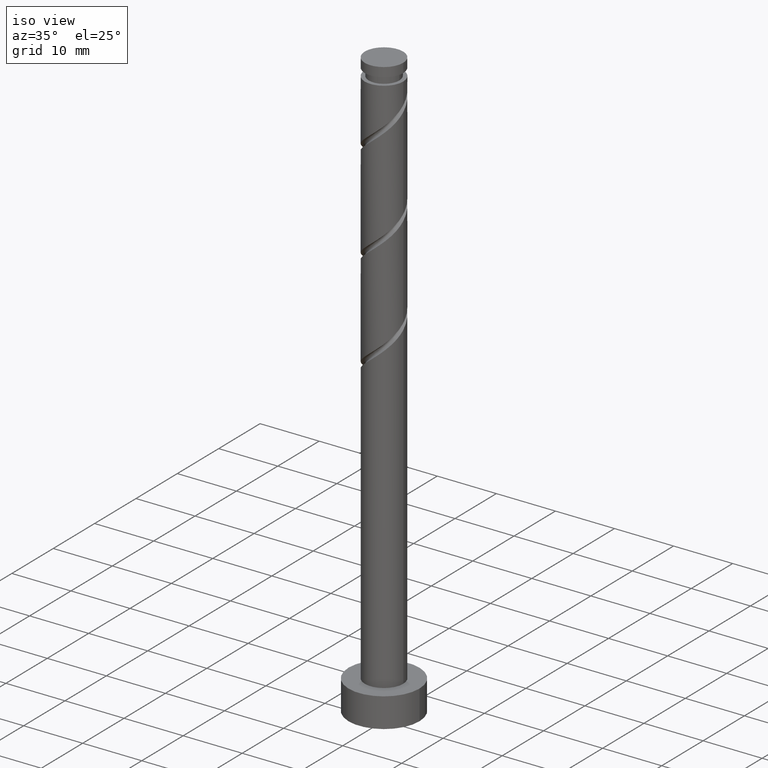
[diagram: clean part render]
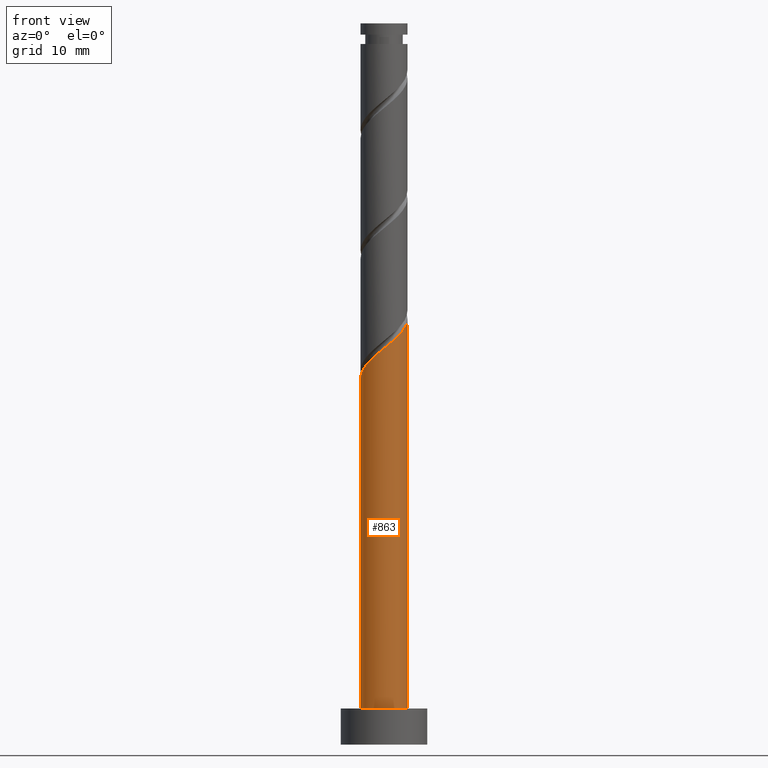
[diagram: tour spotlight — one face highlighted and labeled with its STEP entity id]
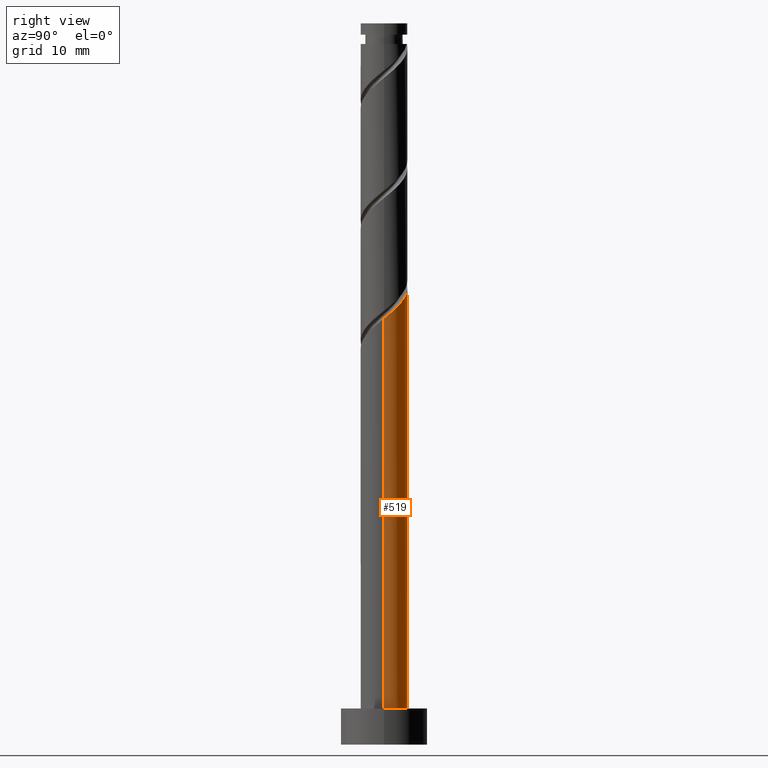
[diagram: tour spotlight — one face highlighted and labeled with its STEP entity id]
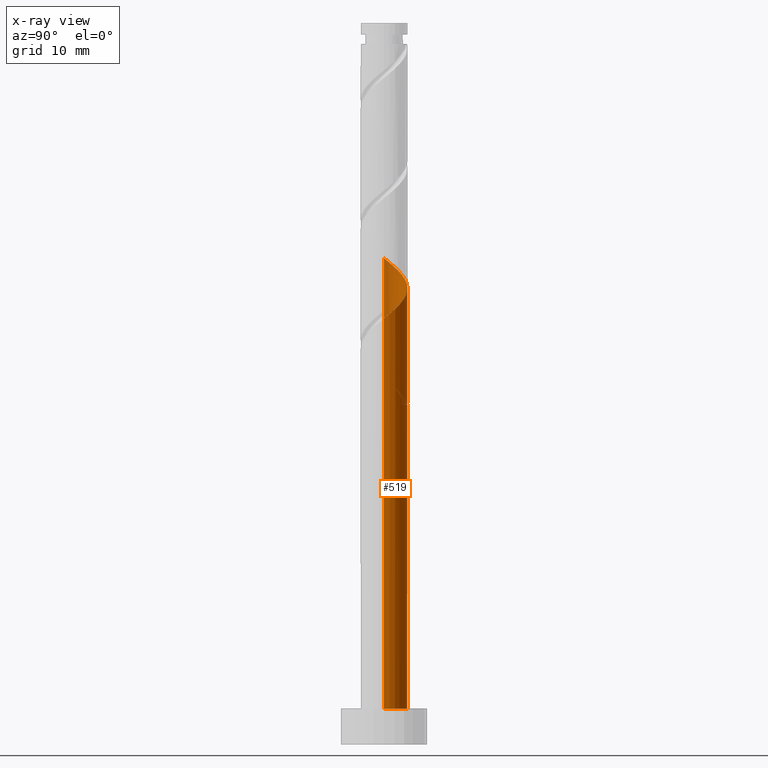
[diagram: x-ray of the same camera — body ghosted, this tour face saturated]
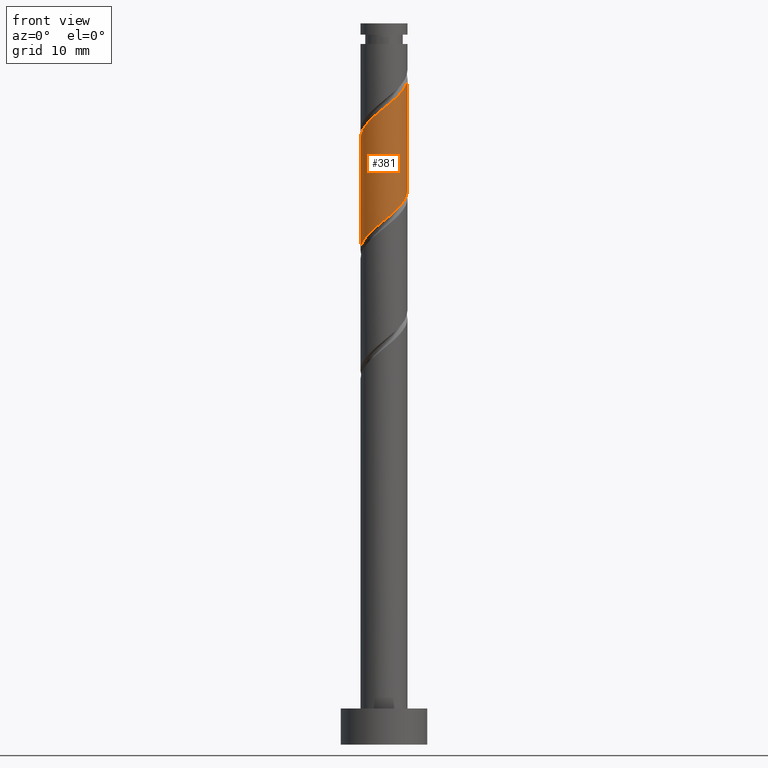
[diagram: tour spotlight — one face highlighted and labeled with its STEP entity id]
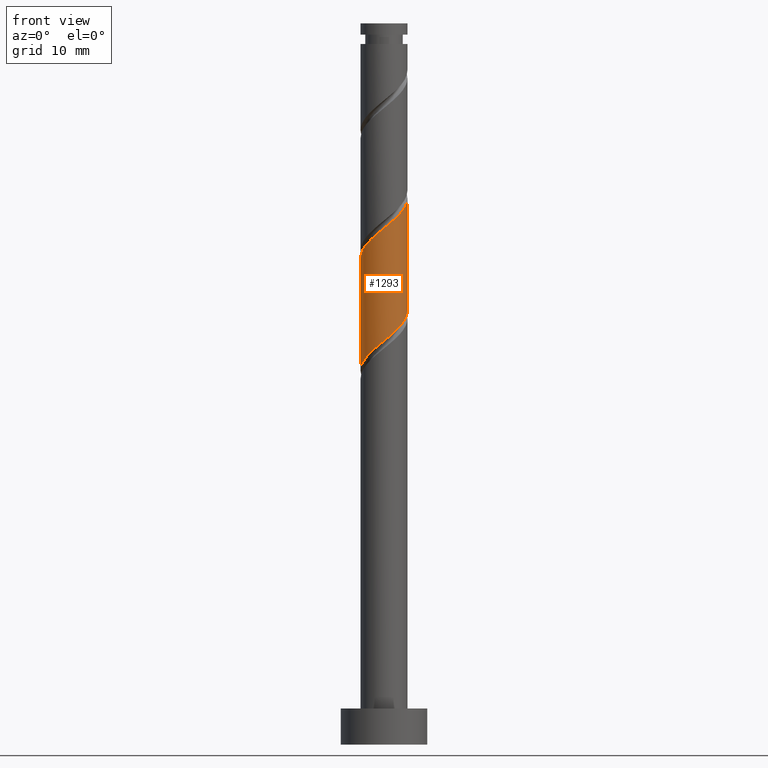
[diagram: tour spotlight — one face highlighted and labeled with its STEP entity id]
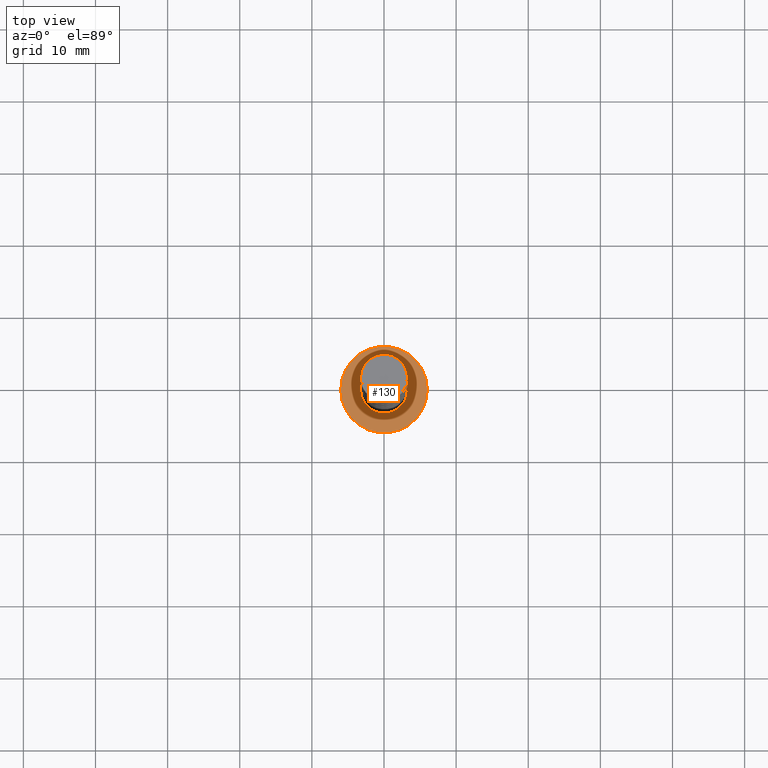
[diagram: tour spotlight — one face highlighted and labeled with its STEP entity id]
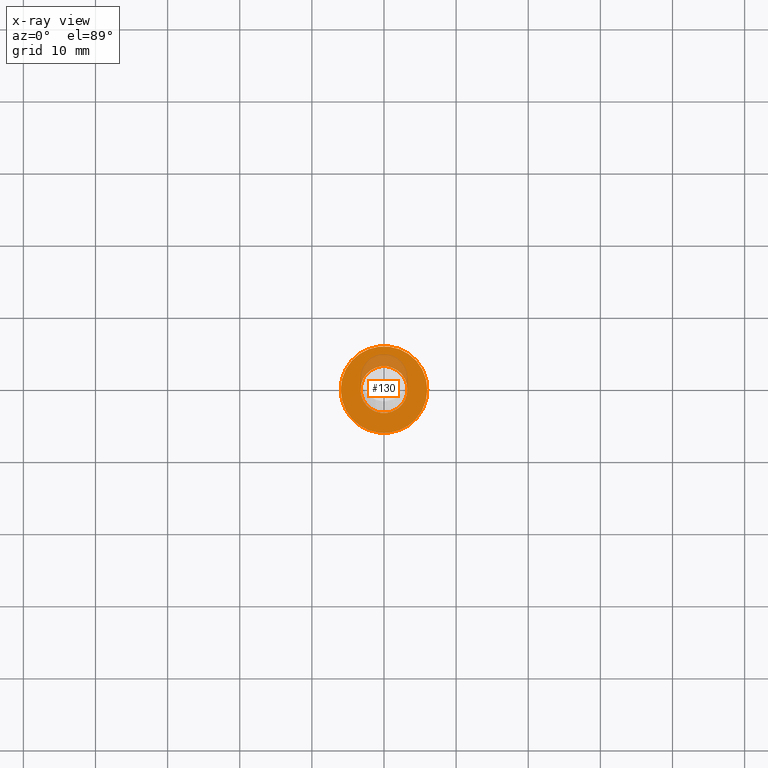
[diagram: x-ray of the same camera — body ghosted, this tour face saturated]
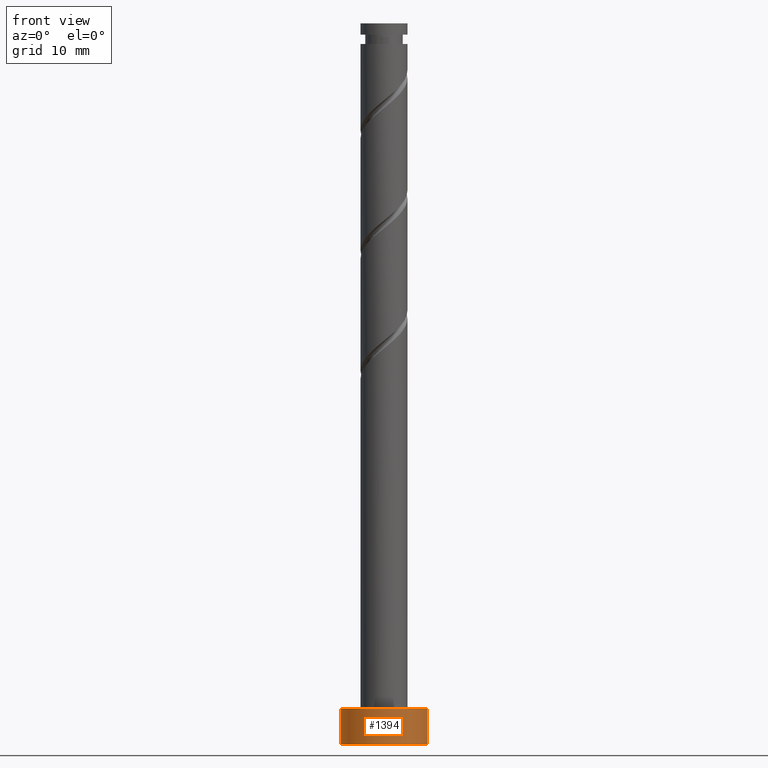
[diagram: tour spotlight — one face highlighted and labeled with its STEP entity id]
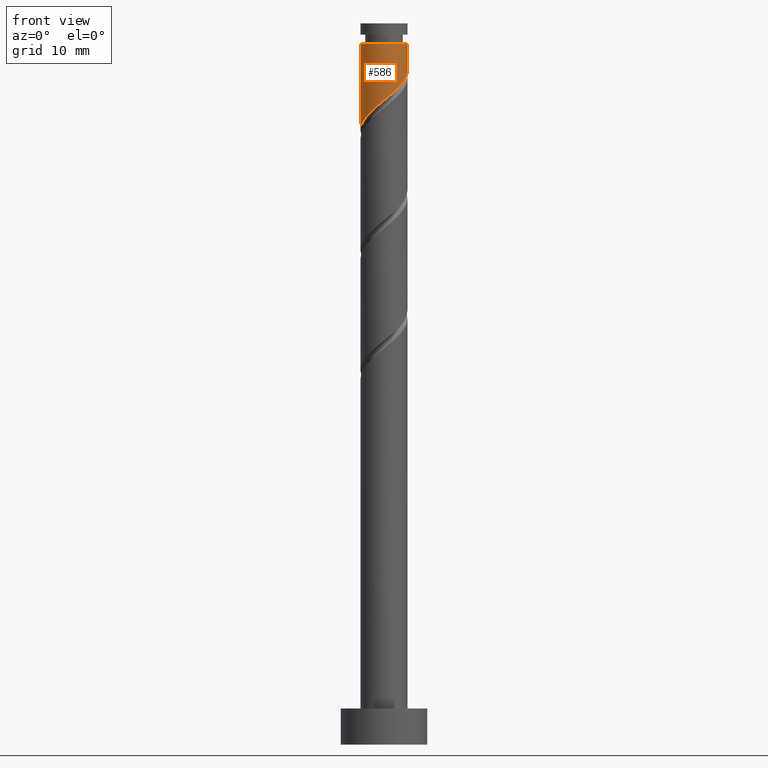
[diagram: tour spotlight — one face highlighted and labeled with its STEP entity id]
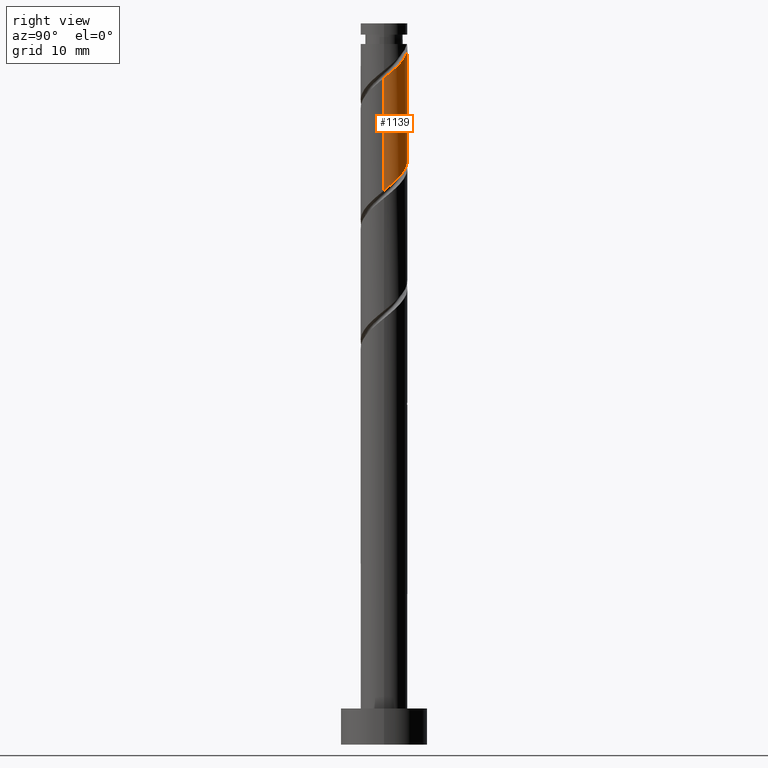
[diagram: tour spotlight — one face highlighted and labeled with its STEP entity id]
A machine part: a face-by-face anatomy tour. The part has 21 B-rep faces; the first image is the clean iso view, then the 8 largest visible faces are spotlighted one at a time (largest first), each with its STEP entity span.

Face 1 — front view, entity #863. In plain terms, the highlighted cylindrical surface (edge-blend (fillet) strip) has radius 3.25 mm, axis along (-0, -0, -1).
Definition (entity closure, byte-faithful):
#48 = CARTESIAN_POINT ( 'NONE',  ( 0.000000000000000000, 0.000000000000000000, 5.000000000000000000 ) ) ;
#69 = CYLINDRICAL_SURFACE ( 'NONE', #1465, 3.250000000000000444 ) ;
#71 = CARTESIAN_POINT ( 'NONE',  ( 3.250000000000000444, 3.980102097228898231E-16, 5.000000000000000000 ) ) ;
#108 = LINE ( 'NONE', #320, #994 ) ;
#115 = CARTESIAN_POINT ( 'NONE',  ( 3.081661828113093193, -1.032405141962545958, 58.24784449267153263 ) ) ;
#123 = CARTESIAN_POINT ( 'NONE',  ( -1.048331655396447681, -3.129201429098508846, 54.08117782600485413 ) ) ;
#133 = CARTESIAN_POINT ( 'NONE',  ( 2.185802103459653534, -2.472482559713972350, 56.85895560378263269 ) ) ;
#146 = CARTESIAN_POINT ( 'NONE',  ( -2.814480546000101224, -1.723252767229861204, 52.22932597415299938 ) ) ;
#298 = CARTESIAN_POINT ( 'NONE',  ( 3.250000000000003997, -2.972854342831843990E-15, 59.10587849323832899 ) ) ;
#313 = EDGE_CURVE ( 'NONE', #938, #490, #924, .T. ) ;
#320 = CARTESIAN_POINT ( 'NONE',  ( -3.250000000000000444, 0.000000000000000000, 100.0000000000000000 ) ) ;
#335 = ORIENTED_EDGE ( 'NONE', *, *, #313, .T. ) ;
#344 = CARTESIAN_POINT ( 'NONE',  ( -3.248918234259671856, -0.08384692656885071871, 50.84043708526412786 ) ) ;
#361 = CARTESIAN_POINT ( 'NONE',  ( -3.024307152428101997, -1.189985818307198739, 51.76636301119005168 ) ) ;
#369 = CARTESIAN_POINT ( 'NONE',  ( -2.055359441987477442, -2.581936948845058755, 53.15525190007893030 ) ) ;
#474 = EDGE_CURVE ( 'NONE', #1037, #490, #741, .T. ) ;
#478 = CARTESIAN_POINT ( 'NONE',  ( -0.4815956274168040063, -3.214119732003312802, 54.54414078896783735 ) ) ;
#486 = AXIS2_PLACEMENT_3D ( 'NONE', #48, #864, #1083 ) ;
#490 = VERTEX_POINT ( 'NONE', #71 ) ;
#540 = EDGE_LOOP ( 'NONE', ( #1116, #775, #558, #335 ) ) ;
#558 = ORIENTED_EDGE ( 'NONE', *, *, #968, .T. ) ;
#572 = CARTESIAN_POINT ( 'NONE',  ( 3.250000000000001776, -0.5299267084164955843, 58.67595898087269290 ) ) ;
#578 = CARTESIAN_POINT ( 'NONE',  ( -2.434919993993789777, -2.152594858037458980, 52.69228893711598971 ) ) ;
#596 = CARTESIAN_POINT ( 'NONE',  ( -3.234133758856102769, -0.6567188693845359415, 51.30340004822708977 ) ) ;
#603 = CARTESIAN_POINT ( 'NONE',  ( 0.08514040056284002955, -3.299038034908115424, 55.00710375193080637 ) ) ;
#640 = CARTESIAN_POINT ( 'NONE',  ( -3.250000000000003997, 2.898159510097376035E-15, 50.77254515990499328 ) ) ;
#706 = EDGE_CURVE ( 'NONE', #1030, #1037, #1213, .T. ) ;
#741 = LINE ( 'NONE', #985, #1106 ) ;
#775 = ORIENTED_EDGE ( 'NONE', *, *, #706, .F. ) ;
#776 = DIRECTION ( 'NONE',  ( -1.000000000000000000, 0.000000000000000000, 0.000000000000000000 ) ) ;
#801 = CARTESIAN_POINT ( 'NONE',  ( -1.551845548691963561, -2.855569188971784023, 53.61821486304190643 ) ) ;
#863 = ADVANCED_FACE ( 'NONE', ( #1100 ), #69, .T. ) ;
#864 = DIRECTION ( 'NONE',  ( 0.000000000000000000, 0.000000000000000000, 1.000000000000000000 ) ) ;
#880 = DIRECTION ( 'NONE',  ( -0.000000000000000000, -0.000000000000000000, -1.000000000000000000 ) ) ;
#924 = CIRCLE ( 'NONE', #486, 3.250000000000000444 ) ;
#938 = VERTEX_POINT ( 'NONE', #1237 ) ;
#968 = EDGE_CURVE ( 'NONE', #1030, #938, #108, .T. ) ;
#985 = CARTESIAN_POINT ( 'NONE',  ( 3.250000000000000444, 3.980102097228898231E-16, 100.0000000000000000 ) ) ;
#994 = VECTOR ( 'NONE', #1227, 1000.000000000000000 ) ;
#1030 = VERTEX_POINT ( 'NONE', #640 ) ;
#1037 = VERTEX_POINT ( 'NONE', #298 ) ;
#1054 = CARTESIAN_POINT ( 'NONE',  ( 1.697072685567709183, -2.771722262402933623, 56.39599264081967789 ) ) ;
#1060 = CARTESIAN_POINT ( 'NONE',  ( 2.542711525011298157, -2.024133913696113840, 57.32191856674561592 ) ) ;
#1083 = DIRECTION ( 'NONE',  ( 1.000000000000000000, 0.000000000000000000, 0.000000000000000000 ) ) ;
#1100 = FACE_OUTER_BOUND ( 'NONE', #540, .T. ) ;
#1106 = VECTOR ( 'NONE', #1304, 1000.000000000000000 ) ;
#1116 = ORIENTED_EDGE ( 'NONE', *, *, #474, .F. ) ;
#1148 = CARTESIAN_POINT ( 'NONE',  ( 2.899620946562941892, -1.575785267678255552, 57.78488152970854941 ) ) ;
#1154 = CARTESIAN_POINT ( 'NONE',  ( 0.6467418341193025277, -3.185000000000004938, 55.47006671489375407 ) ) ;
#1169 = CARTESIAN_POINT ( 'NONE',  ( -3.250000000000003997, 2.898159510097376035E-15, 50.77254515990499328 ) ) ;
#1213 =( BOUNDED_CURVE ( )  B_SPLINE_CURVE ( 2, ( #1169, #1367, #344, #596, #361, #146, #578, #369, #801, #123, #478, #603, #1154, #1281, #1054, #133, #1060, #1148, #115, #572, #1396 ),
 .UNSPECIFIED., .F., .T. ) 
 B_SPLINE_CURVE_WITH_KNOTS ( ( 3, 2, 2, 2, 2, 2, 2, 2, 2, 2, 3 ),
 ( 0.05452480538552906264, 0.05555555555555558023, 0.06944444444444441977, 0.08333333333333337034, 0.09722222222222220989, 0.1111111111111111605, 0.1250000000000000000, 0.1388888888888888395, 0.1527777777777777901, 0.1666666666666666297, 0.1795248053855288684 ),
 .UNSPECIFIED. ) 
 CURVE ( )  GEOMETRIC_REPRESENTATION_ITEM ( )  RATIONAL_B_SPLINE_CURVE ( ( 0.9071930855141266958, 0.9080659294509743074, 0.9090909090909143897, 0.8952797754656489637, 0.9090909090909143897, 0.8952797754656489637, 0.9090909090909143897, 0.8952797754656489637, 0.9090909090909143897, 0.8952797754656489637, 0.9090909090909143897, 0.8952797754656489637, 0.9090909090909143897, 0.8952797754656489637, 0.9090909090909143897, 0.8952797754656489637, 0.9090909090909143897, 0.8952797754656489637, 0.9090909090909143897, 0.8963047551055892681, 0.9071930855141262517 ) ) 
 REPRESENTATION_ITEM ( '' )  );
#1227 = DIRECTION ( 'NONE',  ( -0.000000000000000000, -0.000000000000000000, -1.000000000000000000 ) ) ;
#1237 = CARTESIAN_POINT ( 'NONE',  ( -3.250000000000000444, 0.000000000000000000, 5.000000000000000000 ) ) ;
#1281 = CARTESIAN_POINT ( 'NONE',  ( 1.208343267675763277, -3.070961965091892676, 55.93302967785670177 ) ) ;
#1304 = DIRECTION ( 'NONE',  ( -0.000000000000000000, -0.000000000000000000, -1.000000000000000000 ) ) ;
#1358 = CARTESIAN_POINT ( 'NONE',  ( 0.000000000000000000, 0.000000000000000000, 100.0000000000000000 ) ) ;
#1367 = CARTESIAN_POINT ( 'NONE',  ( -3.250000000000003997, -0.04193044157906655051, 50.80656253383735077 ) ) ;
#1396 = CARTESIAN_POINT ( 'NONE',  ( 3.250000000000003997, -2.972854342831843990E-15, 59.10587849323832899 ) ) ;
#1465 = AXIS2_PLACEMENT_3D ( 'NONE', #1358, #880, #776 ) ;

Face 2 — right view, entity #519. An x-ray twin of the same camera follows (body ghosted, this face saturated) — the face is partly hidden behind the body. In plain terms, the highlighted cylindrical surface (edge-blend (fillet) strip) has radius 3.25 mm, axis along (-0, -0, -1).
Definition (entity closure, byte-faithful):
#11 = CARTESIAN_POINT ( 'NONE',  ( -3.249999999999999112, -2.106394283112023450E-15, 51.83425493654918625 ) ) ;
#40 = CARTESIAN_POINT ( 'NONE',  ( 2.814480546000102557, 1.723252767229859206, 60.56265930748634219 ) ) ;
#41 = ORIENTED_EDGE ( 'NONE', *, *, #535, .F. ) ;
#65 = CARTESIAN_POINT ( 'NONE',  ( -1.208343267675764166, 3.070961965091892232, 64.26636301119003747 ) ) ;
#71 = CARTESIAN_POINT ( 'NONE',  ( 3.250000000000000444, 3.980102097228898231E-16, 5.000000000000000000 ) ) ;
#78 = ORIENTED_EDGE ( 'NONE', *, *, #1228, .T. ) ;
#101 = FACE_OUTER_BOUND ( 'NONE', #1247, .T. ) ;
#108 = LINE ( 'NONE', #320, #994 ) ;
#188 = CARTESIAN_POINT ( 'NONE',  ( -0.6467418341193021947, 3.185000000000004938, 47.13673338156042547 ) ) ;
#189 = CARTESIAN_POINT ( 'NONE',  ( -0.6467418341193021947, 3.185000000000004938, 47.13673338156042547 ) ) ;
#190 = CIRCLE ( 'NONE', #1395, 3.250000000000000444 ) ;
#270 = EDGE_CURVE ( 'NONE', #1037, #1232, #743, .T. ) ;
#277 = CARTESIAN_POINT ( 'NONE',  ( -2.185802103459653978, 2.472482559713971906, 65.19228893711596129 ) ) ;
#284 = CARTESIAN_POINT ( 'NONE',  ( 0.08514040056284158386, 3.299038034908111872, 47.59969634452340159 ) ) ;
#285 = CARTESIAN_POINT ( 'NONE',  ( 3.024307152428101997, 1.189985818307197629, 60.09969634452339449 ) ) ;
#290 = CARTESIAN_POINT ( 'NONE',  ( -0.4815956274168023410, 3.214119732003307917, 48.06265930748634929 ) ) ;
#298 = CARTESIAN_POINT ( 'NONE',  ( 3.250000000000003997, -2.972854342831843990E-15, 59.10587849323832899 ) ) ;
#320 = CARTESIAN_POINT ( 'NONE',  ( -3.250000000000000444, 0.000000000000000000, 100.0000000000000000 ) ) ;
#339 = CIRCLE ( 'NONE', #580, 3.250000000000000444 ) ;
#384 = DIRECTION ( 'NONE',  ( -1.000000000000000000, 0.000000000000000000, 0.000000000000000000 ) ) ;
#386 = CARTESIAN_POINT ( 'NONE',  ( -1.697072685567709183, 2.771722262402933623, 64.72932597415302780 ) ) ;
#400 = CARTESIAN_POINT ( 'NONE',  ( -3.250000000000000444, 0.000000000000000000, 100.0000000000000000 ) ) ;
#404 = CARTESIAN_POINT ( 'NONE',  ( -3.249999999999999112, 0.04193044157906729991, 51.80023756261682877 ) ) ;
#405 = CARTESIAN_POINT ( 'NONE',  ( 1.551845548691964227, 2.855569188971783134, 61.95154819637522792 ) ) ;
#409 = CARTESIAN_POINT ( 'NONE',  ( -2.434919993993786225, 2.152594858037457204, 49.91451115933819693 ) ) ;
#411 = CARTESIAN_POINT ( 'NONE',  ( 3.250000000000003997, -2.972854342831843990E-15, 59.10587849323832899 ) ) ;
#421 = EDGE_CURVE ( 'NONE', #1232, #1278, #1429, .T. ) ;
#474 = EDGE_CURVE ( 'NONE', #1037, #490, #741, .T. ) ;
#490 = VERTEX_POINT ( 'NONE', #71 ) ;
#498 = CARTESIAN_POINT ( 'NONE',  ( 0.6467418341193033049, 3.185000000000000497, 47.13673338156042547 ) ) ;
#504 = CARTESIAN_POINT ( 'NONE',  ( -2.814480546000096783, 1.723252767229860094, 50.37747412230116595 ) ) ;
#505 = CARTESIAN_POINT ( 'NONE',  ( 0.4815956274168060047, 3.214119732003312802, 62.87747412230115884 ) ) ;
#517 = DIRECTION ( 'NONE',  ( 0.000000000000000000, -0.000000000000000000, -1.000000000000000000 ) ) ;
#519 = ADVANCED_FACE ( 'NONE', ( #101 ), #761, .T. ) ;
#523 = CARTESIAN_POINT ( 'NONE',  ( -3.249999999999999112, -2.106394283112023450E-15, 51.83425493654918625 ) ) ;
#535 = EDGE_CURVE ( 'NONE', #917, #1030, #595, .T. ) ;
#555 = CARTESIAN_POINT ( 'NONE',  ( -3.081661828113093193, 1.032405141962545070, 49.91451115933821114 ) ) ;
#566 = DIRECTION ( 'NONE',  ( -1.000000000000000000, 0.000000000000000000, 0.000000000000000000 ) ) ;
#577 = CARTESIAN_POINT ( 'NONE',  ( 0.000000000000000000, 0.000000000000000000, 5.000000000000000000 ) ) ;
#580 = AXIS2_PLACEMENT_3D ( 'NONE', #577, #711, #694 ) ;
#589 = ORIENTED_EDGE ( 'NONE', *, *, #421, .F. ) ;
#595 =( BOUNDED_CURVE ( )  B_SPLINE_CURVE ( 2, ( #189, #641, #648, #888, #674, #1141, #555, #1470, #755 ),
 .UNSPECIFIED., .F., .T. ) 
 B_SPLINE_CURVE_WITH_KNOTS ( ( 3, 2, 2, 2, 3 ),
 ( 0.000000000000000000, 0.01388888888888883955, 0.02777777777777779011, 0.04166666666666662966, 0.05452480538552906264 ),
 .UNSPECIFIED. ) 
 CURVE ( )  GEOMETRIC_REPRESENTATION_ITEM ( )  RATIONAL_B_SPLINE_CURVE ( ( 0.9090909090909143897, 0.8952797754656489637, 0.9090909090909143897, 0.8952797754656489637, 0.9090909090909143897, 0.8952797754656489637, 0.9090909090909143897, 0.8963047551055890461, 0.9071930855141266958 ) ) 
 REPRESENTATION_ITEM ( '' )  );
#613 = CARTESIAN_POINT ( 'NONE',  ( -3.250000000000004441, 2.898159510097376430E-15, 67.43921182657165048 ) ) ;
#619 = CARTESIAN_POINT ( 'NONE',  ( -3.250000000000003997, 0.5299267084164883679, 67.00929231420604992 ) ) ;
#631 = CARTESIAN_POINT ( 'NONE',  ( -2.899620946562942780, 1.575785267678254664, 66.11821486304191353 ) ) ;
#640 = CARTESIAN_POINT ( 'NONE',  ( -3.250000000000003997, 2.898159510097376035E-15, 50.77254515990499328 ) ) ;
#641 = CARTESIAN_POINT ( 'NONE',  ( -1.208343267675764166, 3.070961965091892232, 47.59969634452338738 ) ) ;
#648 = CARTESIAN_POINT ( 'NONE',  ( -1.697072685567709183, 2.771722262402933623, 48.06265930748634929 ) ) ;
#674 = CARTESIAN_POINT ( 'NONE',  ( -2.542711525011298157, 2.024133913696113840, 48.98858523341228022 ) ) ;
#694 = DIRECTION ( 'NONE',  ( 1.000000000000000000, 0.000000000000000000, 0.000000000000000000 ) ) ;
#711 = DIRECTION ( 'NONE',  ( 0.000000000000000000, 0.000000000000000000, 1.000000000000000000 ) ) ;
#718 = CARTESIAN_POINT ( 'NONE',  ( 0.6467418341193033049, 3.185000000000000497, 47.13673338156042547 ) ) ;
#727 = CARTESIAN_POINT ( 'NONE',  ( 2.055359441987477442, 2.581936948845057866, 61.48858523341226601 ) ) ;
#734 = CARTESIAN_POINT ( 'NONE',  ( -3.081661828113093193, 1.032405141962545070, 66.58117782600486123 ) ) ;
#741 = LINE ( 'NONE', #985, #1106 ) ;
#743 =( BOUNDED_CURVE ( )  B_SPLINE_CURVE ( 2, ( #411, #979, #1184, #1311, #285, #40, #1436, #727, #405, #1297, #505, #850, #1208, #65, #386, #277, #1422, #631, #734, #619, #613 ),
 .UNSPECIFIED., .F., .T. ) 
 B_SPLINE_CURVE_WITH_KNOTS ( ( 3, 2, 2, 2, 2, 2, 2, 2, 2, 2, 3 ),
 ( 0.1795248053855288684, 0.1805555555555555802, 0.1944444444444444198, 0.2083333333333333703, 0.2222222222222222099, 0.2361111111111111605, 0.2500000000000000000, 0.2638888888888888395, 0.2777777777777777901, 0.2916666666666666297, 0.3045248053855290071 ),
 .UNSPECIFIED. ) 
 CURVE ( )  GEOMETRIC_REPRESENTATION_ITEM ( )  RATIONAL_B_SPLINE_CURVE ( ( 0.9071930855141262517, 0.9080659294509740853, 0.9090909090909143897, 0.8952797754656489637, 0.9090909090909143897, 0.8952797754656489637, 0.9090909090909143897, 0.8952797754656489637, 0.9090909090909143897, 0.8952797754656489637, 0.9090909090909143897, 0.8952797754656489637, 0.9090909090909143897, 0.8952797754656489637, 0.9090909090909143897, 0.8952797754656489637, 0.9090909090909143897, 0.8952797754656489637, 0.9090909090909143897, 0.8963047551055890461, 0.9071930855141265848 ) ) 
 REPRESENTATION_ITEM ( '' )  );
#755 = CARTESIAN_POINT ( 'NONE',  ( -3.250000000000003997, 2.898159510097376035E-15, 50.77254515990499328 ) ) ;
#761 = CYLINDRICAL_SURFACE ( 'NONE', #792, 3.250000000000000444 ) ;
#777 = DIRECTION ( 'NONE',  ( -0.000000000000000000, -0.000000000000000000, -1.000000000000000000 ) ) ;
#792 = AXIS2_PLACEMENT_3D ( 'NONE', #1028, #777, #566 ) ;
#803 = EDGE_CURVE ( 'NONE', #1278, #1391, #1194, .T. ) ;
#850 = CARTESIAN_POINT ( 'NONE',  ( -0.08514040056284101488, 3.299038034908115424, 63.34043708526409944 ) ) ;
#851 = EDGE_CURVE ( 'NONE', #917, #1391, #190, .T. ) ;
#888 = CARTESIAN_POINT ( 'NONE',  ( -2.185802103459653978, 2.472482559713971906, 48.52562227044930410 ) ) ;
#901 = ORIENTED_EDGE ( 'NONE', *, *, #803, .F. ) ;
#909 = ORIENTED_EDGE ( 'NONE', *, *, #474, .T. ) ;
#917 = VERTEX_POINT ( 'NONE', #188 ) ;
#938 = VERTEX_POINT ( 'NONE', #1237 ) ;
#968 = EDGE_CURVE ( 'NONE', #1030, #938, #108, .T. ) ;
#971 = CARTESIAN_POINT ( 'NONE',  ( -1.048331655396446127, 3.129201429098504406, 48.52562227044932541 ) ) ;
#979 = CARTESIAN_POINT ( 'NONE',  ( 3.250000000000004441, 0.04193044157905871649, 59.13989586717069358 ) ) ;
#985 = CARTESIAN_POINT ( 'NONE',  ( 3.250000000000000444, 3.980102097228898231E-16, 100.0000000000000000 ) ) ;
#990 = CARTESIAN_POINT ( 'NONE',  ( -1.551845548691959564, 2.855569188971779582, 48.98858523341227311 ) ) ;
#994 = VECTOR ( 'NONE', #1227, 1000.000000000000000 ) ;
#1008 = ORIENTED_EDGE ( 'NONE', *, *, #968, .F. ) ;
#1028 = CARTESIAN_POINT ( 'NONE',  ( 0.000000000000000000, 0.000000000000000000, 100.0000000000000000 ) ) ;
#1030 = VERTEX_POINT ( 'NONE', #640 ) ;
#1032 = VECTOR ( 'NONE', #1077, 1000.000000000000000 ) ;
#1037 = VERTEX_POINT ( 'NONE', #298 ) ;
#1075 = CARTESIAN_POINT ( 'NONE',  ( -3.234133758856098328, 0.6567188693845359415, 51.30340004822709687 ) ) ;
#1077 = DIRECTION ( 'NONE',  ( -0.000000000000000000, -0.000000000000000000, -1.000000000000000000 ) ) ;
#1082 = CARTESIAN_POINT ( 'NONE',  ( -3.024307152428097556, 1.189985818307198073, 50.84043708526412075 ) ) ;
#1106 = VECTOR ( 'NONE', #1304, 1000.000000000000000 ) ;
#1141 = CARTESIAN_POINT ( 'NONE',  ( -2.899620946562942780, 1.575785267678254664, 49.45154819637522792 ) ) ;
#1175 = CARTESIAN_POINT ( 'NONE',  ( -3.250000000000003997, 2.898159510097376035E-15, 67.43921182657165048 ) ) ;
#1183 = CARTESIAN_POINT ( 'NONE',  ( -2.055359441987473890, 2.581936948845055646, 49.45154819637524213 ) ) ;
#1184 = CARTESIAN_POINT ( 'NONE',  ( 3.248918234259671856, 0.08384692656885095463, 59.17377041859747067 ) ) ;
#1194 =( BOUNDED_CURVE ( )  B_SPLINE_CURVE ( 2, ( #523, #404, #1435, #1075, #1082, #504, #409, #1183, #990, #971, #290, #284, #498 ),
 .UNSPECIFIED., .F., .T. ) 
 B_SPLINE_CURVE_WITH_KNOTS ( ( 3, 2, 2, 2, 2, 2, 3 ),
 ( 0.9295248053855290626, 0.9305555555555555802, 0.9444444444444444198, 0.9583333333333333703, 0.9722222222222222099, 0.9861111111111111605, 1.000000000000000000 ),
 .UNSPECIFIED. ) 
 CURVE ( )  GEOMETRIC_REPRESENTATION_ITEM ( )  RATIONAL_B_SPLINE_CURVE ( ( 0.9071930855141210337, 0.9080659294509687562, 0.9090909090909088386, 0.8952797754656434126, 0.9090909090909088386, 0.8952797754656434126, 0.9090909090909088386, 0.8952797754656434126, 0.9090909090909088386, 0.8952797754656434126, 0.9090909090909088386, 0.8952797754656434126, 0.9090909090909088386 ) ) 
 REPRESENTATION_ITEM ( '' )  );
#1197 = ORIENTED_EDGE ( 'NONE', *, *, #270, .F. ) ;
#1208 = CARTESIAN_POINT ( 'NONE',  ( -0.6467418341193023057, 3.185000000000004938, 63.80340004822708977 ) ) ;
#1216 = CARTESIAN_POINT ( 'NONE',  ( 0.000000000000000000, 0.000000000000000000, 47.13673338156043258 ) ) ;
#1227 = DIRECTION ( 'NONE',  ( -0.000000000000000000, -0.000000000000000000, -1.000000000000000000 ) ) ;
#1228 = EDGE_CURVE ( 'NONE', #490, #938, #339, .T. ) ;
#1232 = VERTEX_POINT ( 'NONE', #1175 ) ;
#1237 = CARTESIAN_POINT ( 'NONE',  ( -3.250000000000000444, 0.000000000000000000, 5.000000000000000000 ) ) ;
#1247 = EDGE_LOOP ( 'NONE', ( #1197, #909, #78, #1008, #41, #1432, #901, #589 ) ) ;
#1278 = VERTEX_POINT ( 'NONE', #11 ) ;
#1297 = CARTESIAN_POINT ( 'NONE',  ( 1.048331655396449902, 3.129201429098508402, 62.41451115933818983 ) ) ;
#1304 = DIRECTION ( 'NONE',  ( -0.000000000000000000, -0.000000000000000000, -1.000000000000000000 ) ) ;
#1311 = CARTESIAN_POINT ( 'NONE',  ( 3.234133758856102769, 0.6567188693845357195, 59.63673338156041837 ) ) ;
#1391 = VERTEX_POINT ( 'NONE', #718 ) ;
#1395 = AXIS2_PLACEMENT_3D ( 'NONE', #1216, #517, #384 ) ;
#1422 = CARTESIAN_POINT ( 'NONE',  ( -2.542711525011298157, 2.024133913696113840, 65.65525190007895162 ) ) ;
#1429 = LINE ( 'NONE', #400, #1032 ) ;
#1432 = ORIENTED_EDGE ( 'NONE', *, *, #851, .T. ) ;
#1435 = CARTESIAN_POINT ( 'NONE',  ( -3.248918234259666971, 0.08384692656885138484, 51.76636301119005168 ) ) ;
#1436 = CARTESIAN_POINT ( 'NONE',  ( 2.434919993993788889, 2.152594858037460313, 61.02562227044931831 ) ) ;
#1470 = CARTESIAN_POINT ( 'NONE',  ( -3.250000000000004885, 0.5299267084164861474, 50.34262564753937852 ) ) ;

Face 3 — front view, entity #381. In plain terms, the highlighted cylindrical surface (edge-blend (fillet) strip) has radius 3.25 mm, axis along (-0, -0, -1).
Definition (entity closure, byte-faithful):
#12 = CARTESIAN_POINT ( 'NONE',  ( -1.208343267675764610, -3.070961965091888235, 71.67377041859745646 ) ) ;
#47 = ORIENTED_EDGE ( 'NONE', *, *, #1401, .F. ) ;
#54 = VECTOR ( 'NONE', #1053, 1000.000000000000000 ) ;
#62 = CARTESIAN_POINT ( 'NONE',  ( -2.814480546000101224, -1.723252767229861204, 85.56265930748631376 ) ) ;
#111 = VERTEX_POINT ( 'NONE', #125 ) ;
#125 = CARTESIAN_POINT ( 'NONE',  ( 3.250000000000000000, 8.664600597198394724E-16, 76.83425493654918625 ) ) ;
#145 = CARTESIAN_POINT ( 'NONE',  ( 3.250000000000000444, 3.980102097228898231E-16, 100.0000000000000000 ) ) ;
#160 = DIRECTION ( 'NONE',  ( -0.000000000000000000, -0.000000000000000000, -1.000000000000000000 ) ) ;
#164 = CARTESIAN_POINT ( 'NONE',  ( 0.6467418341193025277, -3.185000000000004938, 88.80340004822708977 ) ) ;
#176 = CARTESIAN_POINT ( 'NONE',  ( 3.081661828113093193, -1.032405141962545958, 91.58117782600488965 ) ) ;
#245 = CARTESIAN_POINT ( 'NONE',  ( -0.6467418341193028608, -3.185000000000000497, 72.13673338156043258 ) ) ;
#253 = CARTESIAN_POINT ( 'NONE',  ( 3.234133758856098328, -0.6567188693845364966, 76.30340004822707556 ) ) ;
#268 = EDGE_CURVE ( 'NONE', #548, #1353, #1389, .T. ) ;
#269 = DIRECTION ( 'NONE',  ( -0.000000000000000000, -0.000000000000000000, -1.000000000000000000 ) ) ;
#273 = CARTESIAN_POINT ( 'NONE',  ( 3.250000000000003997, 1.210056290298389065E-15, 92.43921182657169311 ) ) ;
#289 = CARTESIAN_POINT ( 'NONE',  ( -3.250000000000003997, -1.277281639759410658E-15, 84.10587849323833609 ) ) ;
#292 = CARTESIAN_POINT ( 'NONE',  ( 0.000000000000000000, 0.000000000000000000, 100.0000000000000000 ) ) ;
#337 = CARTESIAN_POINT ( 'NONE',  ( 3.024307152428097556, -1.189985818307197851, 75.84043708526412786 ) ) ;
#352 = CARTESIAN_POINT ( 'NONE',  ( 2.434919993993785337, -2.152594858037458536, 74.91451115933821825 ) ) ;
#381 = ADVANCED_FACE ( 'NONE', ( #1096 ), #1324, .T. ) ;
#462 = CARTESIAN_POINT ( 'NONE',  ( 2.814480546000096783, -1.723252767229862092, 75.37747412230115174 ) ) ;
#464 = AXIS2_PLACEMENT_3D ( 'NONE', #292, #160, #1217 ) ;
#470 = CARTESIAN_POINT ( 'NONE',  ( -1.697072685567707850, -2.771722262402928738, 71.21080745563448033 ) ) ;
#502 = CARTESIAN_POINT ( 'NONE',  ( 2.899620946562941892, -1.575785267678255552, 91.11821486304189932 ) ) ;
#509 = CARTESIAN_POINT ( 'NONE',  ( -3.234133758856102769, -0.6567188693845359415, 84.63673338156041837 ) ) ;
#524 =( BOUNDED_CURVE ( )  B_SPLINE_CURVE ( 2, ( #922, #946, #1373, #253, #337, #462, #352, #816, #704, #808, #1161, #587, #245, #12, #470, #939, #712, #793, #719, #1295, #839 ),
 .UNSPECIFIED., .F., .T. ) 
 B_SPLINE_CURVE_WITH_KNOTS ( ( 3, 2, 2, 2, 2, 2, 2, 2, 2, 2, 3 ),
 ( 0.5545248053855290626, 0.5555555555555555802, 0.5694444444444444198, 0.5833333333333333703, 0.5972222222222222099, 0.6111111111111111605, 0.6250000000000000000, 0.6388888888888888395, 0.6527777777777777901, 0.6666666666666666297, 0.6795248053855289516 ),
 .UNSPECIFIED. ) 
 CURVE ( )  GEOMETRIC_REPRESENTATION_ITEM ( )  RATIONAL_B_SPLINE_CURVE ( ( 0.9071930855141210337, 0.9080659294509687562, 0.9090909090909088386, 0.8952797754656434126, 0.9090909090909088386, 0.8952797754656434126, 0.9090909090909088386, 0.8952797754656434126, 0.9090909090909088386, 0.8952797754656434126, 0.9090909090909088386, 0.8952797754656434126, 0.9090909090909088386, 0.8952797754656434126, 0.9090909090909088386, 0.8952797754656434126, 0.9090909090909088386, 0.8952797754656434126, 0.9090909090909088386, 0.8963047551055836060, 0.9071930855141209227 ) ) 
 REPRESENTATION_ITEM ( '' )  );
#548 = VERTEX_POINT ( 'NONE', #1222 ) ;
#587 = CARTESIAN_POINT ( 'NONE',  ( -0.08514040056284273572, -3.299038034908112760, 72.59969634452338028 ) ) ;
#610 = CARTESIAN_POINT ( 'NONE',  ( -0.4815956274168040063, -3.214119732003312802, 87.87747412230116595 ) ) ;
#616 = CARTESIAN_POINT ( 'NONE',  ( 1.697072685567709183, -2.771722262402933623, 89.72932597415299938 ) ) ;
#628 = CARTESIAN_POINT ( 'NONE',  ( -3.248918234259671856, -0.08384692656885071871, 84.17377041859748488 ) ) ;
#650 = VERTEX_POINT ( 'NONE', #689 ) ;
#689 = CARTESIAN_POINT ( 'NONE',  ( 3.250000000000003997, 1.210056290298389065E-15, 92.43921182657169311 ) ) ;
#704 = CARTESIAN_POINT ( 'NONE',  ( 1.551845548691959564, -2.855569188971779582, 73.98858523341225180 ) ) ;
#712 = CARTESIAN_POINT ( 'NONE',  ( -2.542711525011295493, -2.024133913696109843, 70.28488152970858494 ) ) ;
#719 = CARTESIAN_POINT ( 'NONE',  ( -3.081661828113088308, -1.032405141962541961, 69.35895560378266111 ) ) ;
#721 = CARTESIAN_POINT ( 'NONE',  ( -3.250000000000000444, 0.000000000000000000, 100.0000000000000000 ) ) ;
#737 = EDGE_CURVE ( 'NONE', #111, #1353, #524, .T. ) ;
#745 = CARTESIAN_POINT ( 'NONE',  ( -1.048331655396447681, -3.129201429098508846, 87.41451115933816141 ) ) ;
#793 = CARTESIAN_POINT ( 'NONE',  ( -2.899620946562939672, -1.575785267678252222, 69.82191856674560881 ) ) ;
#808 = CARTESIAN_POINT ( 'NONE',  ( 1.048331655396445239, -3.129201429098504850, 73.52562227044930410 ) ) ;
#816 = CARTESIAN_POINT ( 'NONE',  ( 2.055359441987473890, -2.581936948845056090, 74.45154819637521371 ) ) ;
#839 = CARTESIAN_POINT ( 'NONE',  ( -3.249999999999999112, -2.106394283112023844E-15, 68.50092160321584345 ) ) ;
#855 = CARTESIAN_POINT ( 'NONE',  ( 0.08514040056284002955, -3.299038034908115424, 88.34043708526414207 ) ) ;
#922 = CARTESIAN_POINT ( 'NONE',  ( 3.250000000000000000, 8.664600597198394724E-16, 76.83425493654918625 ) ) ;
#939 = CARTESIAN_POINT ( 'NONE',  ( -2.185802103459651757, -2.472482559713969241, 70.74784449267154685 ) ) ;
#946 = CARTESIAN_POINT ( 'NONE',  ( 3.250000000000000000, -0.04193044157906850727, 76.80023756261681456 ) ) ;
#951 = VECTOR ( 'NONE', #269, 1000.000000000000000 ) ;
#969 = CARTESIAN_POINT ( 'NONE',  ( -3.249999999999999112, -2.106394283112023450E-15, 68.50092160321584345 ) ) ;
#976 = CARTESIAN_POINT ( 'NONE',  ( -3.250000000000003997, -0.04193044157906172797, 84.13989586717069358 ) ) ;
#1022 = ORIENTED_EDGE ( 'NONE', *, *, #268, .T. ) ;
#1035 = ORIENTED_EDGE ( 'NONE', *, *, #737, .F. ) ;
#1053 = DIRECTION ( 'NONE',  ( -0.000000000000000000, -0.000000000000000000, -1.000000000000000000 ) ) ;
#1086 = CARTESIAN_POINT ( 'NONE',  ( 3.250000000000007105, -0.5299267084164794861, 92.00929231420604992 ) ) ;
#1096 = FACE_OUTER_BOUND ( 'NONE', #1412, .T. ) ;
#1099 = CARTESIAN_POINT ( 'NONE',  ( -3.024307152428101997, -1.189985818307198739, 85.09969634452338028 ) ) ;
#1159 = LINE ( 'NONE', #145, #54 ) ;
#1161 = CARTESIAN_POINT ( 'NONE',  ( 0.4815956274168021745, -3.214119732003307917, 73.06265930748634219 ) ) ;
#1181 = CARTESIAN_POINT ( 'NONE',  ( -1.551845548691963561, -2.855569188971784023, 86.95154819637524213 ) ) ;
#1192 = ORIENTED_EDGE ( 'NONE', *, *, #1273, .F. ) ;
#1217 = DIRECTION ( 'NONE',  ( -1.000000000000000000, 0.000000000000000000, 0.000000000000000000 ) ) ;
#1222 = CARTESIAN_POINT ( 'NONE',  ( -3.250000000000003997, -1.277281639759410658E-15, 84.10587849323835030 ) ) ;
#1273 = EDGE_CURVE ( 'NONE', #650, #111, #1159, .T. ) ;
#1294 = CARTESIAN_POINT ( 'NONE',  ( -2.434919993993789777, -2.152594858037458980, 86.02562227044930410 ) ) ;
#1295 = CARTESIAN_POINT ( 'NONE',  ( -3.249999999999998668, -0.5299267084164890340, 68.93084111558145821 ) ) ;
#1308 = CARTESIAN_POINT ( 'NONE',  ( 2.542711525011298157, -2.024133913696113840, 90.65525190007898004 ) ) ;
#1322 = CARTESIAN_POINT ( 'NONE',  ( 1.208343267675763277, -3.070961965091892676, 89.26636301119005168 ) ) ;
#1324 = CYLINDRICAL_SURFACE ( 'NONE', #464, 3.250000000000000444 ) ;
#1353 = VERTEX_POINT ( 'NONE', #969 ) ;
#1373 = CARTESIAN_POINT ( 'NONE',  ( 3.248918234259667859, -0.08384692656885255058, 76.76636301119005168 ) ) ;
#1389 = LINE ( 'NONE', #721, #951 ) ;
#1401 = EDGE_CURVE ( 'NONE', #548, #650, #1483, .T. ) ;
#1403 = CARTESIAN_POINT ( 'NONE',  ( -2.055359441987477442, -2.581936948845058755, 86.48858523341228022 ) ) ;
#1412 = EDGE_LOOP ( 'NONE', ( #1192, #47, #1022, #1035 ) ) ;
#1433 = CARTESIAN_POINT ( 'NONE',  ( 2.185802103459653534, -2.472482559713972350, 90.19228893711597550 ) ) ;
#1483 =( BOUNDED_CURVE ( )  B_SPLINE_CURVE ( 2, ( #289, #976, #628, #509, #1099, #62, #1294, #1403, #1181, #745, #610, #855, #164, #1322, #616, #1433, #1308, #502, #176, #1086, #273 ),
 .UNSPECIFIED., .F., .T. ) 
 B_SPLINE_CURVE_WITH_KNOTS ( ( 3, 2, 2, 2, 2, 2, 2, 2, 2, 2, 3 ),
 ( 0.5545248053855289516, 0.5555555555555555802, 0.5694444444444444198, 0.5833333333333332593, 0.5972222222222222099, 0.6111111111111111605, 0.6250000000000000000, 0.6388888888888888395, 0.6527777777777777901, 0.6666666666666667407, 0.6795248053855292847 ),
 .UNSPECIFIED. ) 
 CURVE ( )  GEOMETRIC_REPRESENTATION_ITEM ( )  RATIONAL_B_SPLINE_CURVE ( ( 0.9071930855141264738, 0.9080659294509741963, 0.9090909090909143897, 0.8952797754656489637, 0.9090909090909143897, 0.8952797754656489637, 0.9090909090909143897, 0.8952797754656489637, 0.9090909090909143897, 0.8952797754656489637, 0.9090909090909143897, 0.8952797754656489637, 0.9090909090909143897, 0.8952797754656489637, 0.9090909090909143897, 0.8952797754656489637, 0.9090909090909143897, 0.8952797754656489637, 0.9090909090909143897, 0.8963047551055888240, 0.9071930855141270289 ) ) 
 REPRESENTATION_ITEM ( '' )  );

Face 4 — front view, entity #1293. In plain terms, the highlighted cylindrical surface (edge-blend (fillet) strip) has radius 3.25 mm, axis along (-0, -0, -1).
Definition (entity closure, byte-faithful):
#7 = LINE ( 'NONE', #958, #748 ) ;
#11 = CARTESIAN_POINT ( 'NONE',  ( -3.249999999999999112, -2.106394283112023450E-15, 51.83425493654918625 ) ) ;
#39 = CARTESIAN_POINT ( 'NONE',  ( 3.081661828113093193, -1.032405141962545958, 74.91451115933820404 ) ) ;
#46 = CARTESIAN_POINT ( 'NONE',  ( 2.899620946562941892, -1.575785267678255552, 74.45154819637522792 ) ) ;
#53 = CARTESIAN_POINT ( 'NONE',  ( 2.542711525011298157, -2.024133913696113840, 73.98858523341228022 ) ) ;
#64 = CARTESIAN_POINT ( 'NONE',  ( 2.185802103459653534, -2.472482559713972350, 73.52562227044931831 ) ) ;
#75 = CARTESIAN_POINT ( 'NONE',  ( 2.814480546000096783, -1.723252767229862092, 58.71080745563450876 ) ) ;
#84 = ORIENTED_EDGE ( 'NONE', *, *, #223, .F. ) ;
#85 = ORIENTED_EDGE ( 'NONE', *, *, #783, .F. ) ;
#99 = CARTESIAN_POINT ( 'NONE',  ( -3.081661828113088308, -1.032405141962541961, 52.69228893711597550 ) ) ;
#211 = CARTESIAN_POINT ( 'NONE',  ( 1.551845548691959564, -2.855569188971779582, 57.32191856674560881 ) ) ;
#220 = CYLINDRICAL_SURFACE ( 'NONE', #457, 3.250000000000000444 ) ;
#223 = EDGE_CURVE ( 'NONE', #890, #709, #7, .T. ) ;
#334 = EDGE_LOOP ( 'NONE', ( #84, #85, #957, #788 ) ) ;
#400 = CARTESIAN_POINT ( 'NONE',  ( -3.250000000000000444, 0.000000000000000000, 100.0000000000000000 ) ) ;
#421 = EDGE_CURVE ( 'NONE', #1232, #1278, #1429, .T. ) ;
#440 = CARTESIAN_POINT ( 'NONE',  ( 3.250000000000003997, -2.972854342831843990E-15, 75.77254515990500749 ) ) ;
#447 = CARTESIAN_POINT ( 'NONE',  ( 1.048331655396445239, -3.129201429098504850, 56.85895560378265401 ) ) ;
#457 = AXIS2_PLACEMENT_3D ( 'NONE', #468, #682, #921 ) ;
#465 = DIRECTION ( 'NONE',  ( -0.000000000000000000, -0.000000000000000000, -1.000000000000000000 ) ) ;
#468 = CARTESIAN_POINT ( 'NONE',  ( 0.000000000000000000, 0.000000000000000000, 100.0000000000000000 ) ) ;
#511 = CARTESIAN_POINT ( 'NONE',  ( 3.250000000000006661, -0.5299267084164814845, 75.34262564753939273 ) ) ;
#529 = CARTESIAN_POINT ( 'NONE',  ( 2.055359441987473890, -2.581936948845056090, 57.78488152970857783 ) ) ;
#630 = CARTESIAN_POINT ( 'NONE',  ( -0.4815956274168040063, -3.214119732003312802, 71.21080745563450876 ) ) ;
#647 = CARTESIAN_POINT ( 'NONE',  ( 3.250000000000000000, 8.664600597198394724E-16, 60.16758826988252196 ) ) ;
#667 =( BOUNDED_CURVE ( )  B_SPLINE_CURVE ( 2, ( #733, #749, #840, #964, #862, #1191, #1323, #1330, #1420, #1200, #630, #984, #1302, #1088, #848, #64, #53, #46, #39, #511, #720 ),
 .UNSPECIFIED., .F., .T. ) 
 B_SPLINE_CURVE_WITH_KNOTS ( ( 3, 2, 2, 2, 2, 2, 2, 2, 2, 2, 3 ),
 ( 0.3045248053855290071, 0.3055555555555555802, 0.3194444444444444198, 0.3333333333333333703, 0.3472222222222222099, 0.3611111111111111605, 0.3750000000000000000, 0.3888888888888888395, 0.4027777777777777901, 0.4166666666666666297, 0.4295248053855292292 ),
 .UNSPECIFIED. ) 
 CURVE ( )  GEOMETRIC_REPRESENTATION_ITEM ( )  RATIONAL_B_SPLINE_CURVE ( ( 0.9071930855141265848, 0.9080659294509743074, 0.9090909090909143897, 0.8952797754656489637, 0.9090909090909143897, 0.8952797754656489637, 0.9090909090909143897, 0.8952797754656489637, 0.9090909090909143897, 0.8952797754656489637, 0.9090909090909143897, 0.8952797754656489637, 0.9090909090909143897, 0.8952797754656489637, 0.9090909090909143897, 0.8952797754656489637, 0.9090909090909143897, 0.8952797754656489637, 0.9090909090909143897, 0.8963047551055888240, 0.9071930855141269179 ) ) 
 REPRESENTATION_ITEM ( '' )  );
#672 = CARTESIAN_POINT ( 'NONE',  ( -0.08514040056284273572, -3.299038034908112760, 55.93302967785673729 ) ) ;
#682 = DIRECTION ( 'NONE',  ( -0.000000000000000000, -0.000000000000000000, -1.000000000000000000 ) ) ;
#709 = VERTEX_POINT ( 'NONE', #1380 ) ;
#720 = CARTESIAN_POINT ( 'NONE',  ( 3.250000000000003997, -2.972854342831843990E-15, 75.77254515990500749 ) ) ;
#733 = CARTESIAN_POINT ( 'NONE',  ( -3.250000000000004441, 2.898159510097376430E-15, 67.43921182657165048 ) ) ;
#748 = VECTOR ( 'NONE', #465, 1000.000000000000000 ) ;
#749 = CARTESIAN_POINT ( 'NONE',  ( -3.250000000000003997, -0.04193044157906430230, 67.47322920050400796 ) ) ;
#760 = CARTESIAN_POINT ( 'NONE',  ( -2.185802103459651757, -2.472482559713969241, 54.08117782600486834 ) ) ;
#767 = CARTESIAN_POINT ( 'NONE',  ( 0.4815956274168021745, -3.214119732003307917, 56.39599264081968499 ) ) ;
#783 = EDGE_CURVE ( 'NONE', #1232, #890, #667, .T. ) ;
#784 = CARTESIAN_POINT ( 'NONE',  ( 3.024307152428097556, -1.189985818307197851, 59.17377041859746356 ) ) ;
#788 = ORIENTED_EDGE ( 'NONE', *, *, #936, .F. ) ;
#840 = CARTESIAN_POINT ( 'NONE',  ( -3.248918234259671856, -0.08384692656885071871, 67.50710375193079926 ) ) ;
#848 = CARTESIAN_POINT ( 'NONE',  ( 1.697072685567709183, -2.771722262402933623, 73.06265930748637061 ) ) ;
#862 = CARTESIAN_POINT ( 'NONE',  ( -3.024307152428101997, -1.189985818307198739, 68.43302967785672308 ) ) ;
#890 = VERTEX_POINT ( 'NONE', #440 ) ;
#897 = CARTESIAN_POINT ( 'NONE',  ( 3.248918234259667859, -0.08384692656885255058, 60.09969634452339449 ) ) ;
#921 = DIRECTION ( 'NONE',  ( -1.000000000000000000, 0.000000000000000000, 0.000000000000000000 ) ) ;
#936 = EDGE_CURVE ( 'NONE', #709, #1278, #1379, .T. ) ;
#957 = ORIENTED_EDGE ( 'NONE', *, *, #421, .T. ) ;
#958 = CARTESIAN_POINT ( 'NONE',  ( 3.250000000000000444, 3.980102097228898231E-16, 100.0000000000000000 ) ) ;
#964 = CARTESIAN_POINT ( 'NONE',  ( -3.234133758856102769, -0.6567188693845359415, 67.97006671489373275 ) ) ;
#984 = CARTESIAN_POINT ( 'NONE',  ( 0.08514040056284002955, -3.299038034908115424, 71.67377041859744224 ) ) ;
#997 = CARTESIAN_POINT ( 'NONE',  ( 2.434919993993785337, -2.152594858037458536, 58.24784449267151842 ) ) ;
#1004 = CARTESIAN_POINT ( 'NONE',  ( -0.6467418341193028608, -3.185000000000000497, 55.47006671489374696 ) ) ;
#1026 = CARTESIAN_POINT ( 'NONE',  ( -3.249999999999999112, -2.106394283112023450E-15, 51.83425493654918625 ) ) ;
#1032 = VECTOR ( 'NONE', #1077, 1000.000000000000000 ) ;
#1034 = CARTESIAN_POINT ( 'NONE',  ( -1.208343267675764610, -3.070961965091888235, 55.00710375193081347 ) ) ;
#1077 = DIRECTION ( 'NONE',  ( -0.000000000000000000, -0.000000000000000000, -1.000000000000000000 ) ) ;
#1088 = CARTESIAN_POINT ( 'NONE',  ( 1.208343267675763277, -3.070961965091892676, 72.59969634452338028 ) ) ;
#1130 = CARTESIAN_POINT ( 'NONE',  ( 3.250000000000000000, -0.04193044157906850727, 60.13357089595015736 ) ) ;
#1138 = CARTESIAN_POINT ( 'NONE',  ( -1.697072685567707850, -2.771722262402928738, 54.54414078896782314 ) ) ;
#1175 = CARTESIAN_POINT ( 'NONE',  ( -3.250000000000003997, 2.898159510097376035E-15, 67.43921182657165048 ) ) ;
#1191 = CARTESIAN_POINT ( 'NONE',  ( -2.814480546000101224, -1.723252767229861204, 68.89599264081965657 ) ) ;
#1200 = CARTESIAN_POINT ( 'NONE',  ( -1.048331655396447681, -3.129201429098508846, 70.74784449267151842 ) ) ;
#1221 = CARTESIAN_POINT ( 'NONE',  ( -2.899620946562939672, -1.575785267678252222, 53.15525190007894452 ) ) ;
#1232 = VERTEX_POINT ( 'NONE', #1175 ) ;
#1244 = CARTESIAN_POINT ( 'NONE',  ( -2.542711525011295493, -2.024133913696109843, 53.61821486304190643 ) ) ;
#1278 = VERTEX_POINT ( 'NONE', #11 ) ;
#1293 = ADVANCED_FACE ( 'NONE', ( #1366 ), #220, .T. ) ;
#1302 = CARTESIAN_POINT ( 'NONE',  ( 0.6467418341193025277, -3.185000000000004938, 72.13673338156044679 ) ) ;
#1323 = CARTESIAN_POINT ( 'NONE',  ( -2.434919993993789777, -2.152594858037458980, 69.35895560378264690 ) ) ;
#1330 = CARTESIAN_POINT ( 'NONE',  ( -2.055359441987477442, -2.581936948845058755, 69.82191856674558039 ) ) ;
#1366 = FACE_OUTER_BOUND ( 'NONE', #334, .T. ) ;
#1379 =( BOUNDED_CURVE ( )  B_SPLINE_CURVE ( 2, ( #647, #1130, #897, #1459, #784, #75, #997, #529, #211, #447, #767, #672, #1004, #1034, #1138, #760, #1244, #1221, #99, #1447, #1026 ),
 .UNSPECIFIED., .F., .T. ) 
 B_SPLINE_CURVE_WITH_KNOTS ( ( 3, 2, 2, 2, 2, 2, 2, 2, 2, 2, 3 ),
 ( 0.8045248053855290626, 0.8055555555555555802, 0.8194444444444444198, 0.8333333333333333703, 0.8472222222222222099, 0.8611111111111111605, 0.8750000000000000000, 0.8888888888888888395, 0.9027777777777777901, 0.9166666666666666297, 0.9295248053855290626 ),
 .UNSPECIFIED. ) 
 CURVE ( )  GEOMETRIC_REPRESENTATION_ITEM ( )  RATIONAL_B_SPLINE_CURVE ( ( 0.9071930855141210337, 0.9080659294509687562, 0.9090909090909088386, 0.8952797754656434126, 0.9090909090909088386, 0.8952797754656434126, 0.9090909090909088386, 0.8952797754656434126, 0.9090909090909088386, 0.8952797754656434126, 0.9090909090909088386, 0.8952797754656434126, 0.9090909090909088386, 0.8952797754656434126, 0.9090909090909088386, 0.8952797754656434126, 0.9090909090909088386, 0.8952797754656434126, 0.9090909090909088386, 0.8963047551055834949, 0.9071930855141210337 ) ) 
 REPRESENTATION_ITEM ( '' )  );
#1380 = CARTESIAN_POINT ( 'NONE',  ( 3.250000000000000000, 8.664600597198394724E-16, 60.16758826988252196 ) ) ;
#1420 = CARTESIAN_POINT ( 'NONE',  ( -1.551845548691963561, -2.855569188971784023, 70.28488152970855651 ) ) ;
#1429 = LINE ( 'NONE', #400, #1032 ) ;
#1447 = CARTESIAN_POINT ( 'NONE',  ( -3.250000000000000000, -0.5299267084164847041, 52.26417444891480812 ) ) ;
#1459 = CARTESIAN_POINT ( 'NONE',  ( 3.234133758856098328, -0.6567188693845364966, 59.63673338156042547 ) ) ;

Face 5 — top view, entity #130. An x-ray twin of the same camera follows (body ghosted, this face saturated) — the face is partly hidden behind the body. In plain terms, the highlighted planar face has unit normal (0, 0, 1).
Definition (entity closure, byte-faithful):
#48 = CARTESIAN_POINT ( 'NONE',  ( 0.000000000000000000, 0.000000000000000000, 5.000000000000000000 ) ) ;
#71 = CARTESIAN_POINT ( 'NONE',  ( 3.250000000000000444, 3.980102097228898231E-16, 5.000000000000000000 ) ) ;
#130 = ADVANCED_FACE ( 'NONE', ( #1274, #255 ), #1375, .T. ) ;
#138 = ORIENTED_EDGE ( 'NONE', *, *, #313, .F. ) ;
#255 = FACE_OUTER_BOUND ( 'NONE', #423, .T. ) ;
#294 = AXIS2_PLACEMENT_3D ( 'NONE', #512, #1089, #841 ) ;
#299 = EDGE_CURVE ( 'NONE', #1361, #876, #795, .T. ) ;
#313 = EDGE_CURVE ( 'NONE', #938, #490, #924, .T. ) ;
#339 = CIRCLE ( 'NONE', #580, 3.250000000000000444 ) ;
#423 = EDGE_LOOP ( 'NONE', ( #1253, #439 ) ) ;
#426 = CARTESIAN_POINT ( 'NONE',  ( 0.000000000000000000, 0.000000000000000000, 5.000000000000000000 ) ) ;
#439 = ORIENTED_EDGE ( 'NONE', *, *, #554, .T. ) ;
#458 = CARTESIAN_POINT ( 'NONE',  ( 0.000000000000000000, 0.000000000000000000, 5.000000000000000000 ) ) ;
#486 = AXIS2_PLACEMENT_3D ( 'NONE', #48, #864, #1083 ) ;
#490 = VERTEX_POINT ( 'NONE', #71 ) ;
#512 = CARTESIAN_POINT ( 'NONE',  ( 0.000000000000000000, 0.000000000000000000, 5.000000000000000000 ) ) ;
#538 = DIRECTION ( 'NONE',  ( 0.000000000000000000, 0.000000000000000000, 1.000000000000000000 ) ) ;
#554 = EDGE_CURVE ( 'NONE', #876, #1361, #1279, .T. ) ;
#577 = CARTESIAN_POINT ( 'NONE',  ( 0.000000000000000000, 0.000000000000000000, 5.000000000000000000 ) ) ;
#580 = AXIS2_PLACEMENT_3D ( 'NONE', #577, #711, #694 ) ;
#608 = AXIS2_PLACEMENT_3D ( 'NONE', #426, #538, #1331 ) ;
#694 = DIRECTION ( 'NONE',  ( 1.000000000000000000, 0.000000000000000000, 0.000000000000000000 ) ) ;
#711 = DIRECTION ( 'NONE',  ( 0.000000000000000000, 0.000000000000000000, 1.000000000000000000 ) ) ;
#759 = ORIENTED_EDGE ( 'NONE', *, *, #1228, .F. ) ;
#795 = CIRCLE ( 'NONE', #294, 6.000000000000000888 ) ;
#841 = DIRECTION ( 'NONE',  ( 1.000000000000000000, 0.000000000000000000, 0.000000000000000000 ) ) ;
#864 = DIRECTION ( 'NONE',  ( 0.000000000000000000, 0.000000000000000000, 1.000000000000000000 ) ) ;
#876 = VERTEX_POINT ( 'NONE', #1105 ) ;
#924 = CIRCLE ( 'NONE', #486, 3.250000000000000444 ) ;
#938 = VERTEX_POINT ( 'NONE', #1237 ) ;
#1050 = DIRECTION ( 'NONE',  ( 0.000000000000000000, 0.000000000000000000, 1.000000000000000000 ) ) ;
#1083 = DIRECTION ( 'NONE',  ( 1.000000000000000000, 0.000000000000000000, 0.000000000000000000 ) ) ;
#1089 = DIRECTION ( 'NONE',  ( 0.000000000000000000, 0.000000000000000000, 1.000000000000000000 ) ) ;
#1105 = CARTESIAN_POINT ( 'NONE',  ( 6.000000000000000888, 7.347880794884120722E-16, 5.000000000000000000 ) ) ;
#1173 = EDGE_LOOP ( 'NONE', ( #138, #759 ) ) ;
#1178 = DIRECTION ( 'NONE',  ( 1.000000000000000000, 0.000000000000000000, -0.000000000000000000 ) ) ;
#1228 = EDGE_CURVE ( 'NONE', #490, #938, #339, .T. ) ;
#1237 = CARTESIAN_POINT ( 'NONE',  ( -3.250000000000000444, 0.000000000000000000, 5.000000000000000000 ) ) ;
#1253 = ORIENTED_EDGE ( 'NONE', *, *, #299, .T. ) ;
#1274 = FACE_BOUND ( 'NONE', #1173, .T. ) ;
#1279 = CIRCLE ( 'NONE', #608, 6.000000000000000888 ) ;
#1331 = DIRECTION ( 'NONE',  ( 1.000000000000000000, 0.000000000000000000, 0.000000000000000000 ) ) ;
#1361 = VERTEX_POINT ( 'NONE', #1418 ) ;
#1375 = PLANE ( 'NONE',  #1445 ) ;
#1418 = CARTESIAN_POINT ( 'NONE',  ( -6.000000000000000888, 0.000000000000000000, 5.000000000000000000 ) ) ;
#1445 = AXIS2_PLACEMENT_3D ( 'NONE', #458, #1050, #1178 ) ;

Face 6 — front view, entity #1394. In plain terms, the highlighted cylindrical surface (partial cylindrical patch) has radius 6 mm, axis along (-0, -0, -1).
Definition (entity closure, byte-faithful):
#22 = DIRECTION ( 'NONE',  ( 0.000000000000000000, 0.000000000000000000, 1.000000000000000000 ) ) ;
#44 = DIRECTION ( 'NONE',  ( -1.000000000000000000, 0.000000000000000000, 0.000000000000000000 ) ) ;
#55 = EDGE_CURVE ( 'NONE', #1361, #1013, #941, .T. ) ;
#70 = EDGE_CURVE ( 'NONE', #876, #1467, #1486, .T. ) ;
#132 = VECTOR ( 'NONE', #1267, 1000.000000000000000 ) ;
#136 = DIRECTION ( 'NONE',  ( -0.000000000000000000, -0.000000000000000000, -1.000000000000000000 ) ) ;
#152 = FACE_OUTER_BOUND ( 'NONE', #487, .T. ) ;
#172 = ORIENTED_EDGE ( 'NONE', *, *, #299, .F. ) ;
#185 = EDGE_CURVE ( 'NONE', #1013, #1467, #1214, .T. ) ;
#230 = CARTESIAN_POINT ( 'NONE',  ( -6.000000000000000888, 0.000000000000000000, 5.000000000000000000 ) ) ;
#258 = CARTESIAN_POINT ( 'NONE',  ( 0.000000000000000000, 0.000000000000000000, 5.000000000000000000 ) ) ;
#281 = CYLINDRICAL_SURFACE ( 'NONE', #723, 6.000000000000000888 ) ;
#294 = AXIS2_PLACEMENT_3D ( 'NONE', #512, #1089, #841 ) ;
#299 = EDGE_CURVE ( 'NONE', #1361, #876, #795, .T. ) ;
#340 = ORIENTED_EDGE ( 'NONE', *, *, #185, .T. ) ;
#432 = CARTESIAN_POINT ( 'NONE',  ( -6.000000000000000888, 0.000000000000000000, 0.000000000000000000 ) ) ;
#487 = EDGE_LOOP ( 'NONE', ( #533, #172, #1017, #340 ) ) ;
#512 = CARTESIAN_POINT ( 'NONE',  ( 0.000000000000000000, 0.000000000000000000, 5.000000000000000000 ) ) ;
#533 = ORIENTED_EDGE ( 'NONE', *, *, #70, .F. ) ;
#723 = AXIS2_PLACEMENT_3D ( 'NONE', #258, #738, #44 ) ;
#738 = DIRECTION ( 'NONE',  ( -0.000000000000000000, -0.000000000000000000, -1.000000000000000000 ) ) ;
#795 = CIRCLE ( 'NONE', #294, 6.000000000000000888 ) ;
#841 = DIRECTION ( 'NONE',  ( 1.000000000000000000, 0.000000000000000000, 0.000000000000000000 ) ) ;
#876 = VERTEX_POINT ( 'NONE', #1105 ) ;
#941 = LINE ( 'NONE', #230, #132 ) ;
#1013 = VERTEX_POINT ( 'NONE', #432 ) ;
#1017 = ORIENTED_EDGE ( 'NONE', *, *, #55, .T. ) ;
#1043 = CARTESIAN_POINT ( 'NONE',  ( 0.000000000000000000, 0.000000000000000000, 0.000000000000000000 ) ) ;
#1089 = DIRECTION ( 'NONE',  ( 0.000000000000000000, 0.000000000000000000, 1.000000000000000000 ) ) ;
#1105 = CARTESIAN_POINT ( 'NONE',  ( 6.000000000000000888, 7.347880794884120722E-16, 5.000000000000000000 ) ) ;
#1140 = AXIS2_PLACEMENT_3D ( 'NONE', #1043, #22, #1171 ) ;
#1156 = CARTESIAN_POINT ( 'NONE',  ( 6.000000000000000888, 7.347880794884120722E-16, 5.000000000000000000 ) ) ;
#1164 = VECTOR ( 'NONE', #136, 1000.000000000000000 ) ;
#1171 = DIRECTION ( 'NONE',  ( 1.000000000000000000, 0.000000000000000000, 0.000000000000000000 ) ) ;
#1214 = CIRCLE ( 'NONE', #1140, 6.000000000000000888 ) ;
#1267 = DIRECTION ( 'NONE',  ( -0.000000000000000000, -0.000000000000000000, -1.000000000000000000 ) ) ;
#1300 = CARTESIAN_POINT ( 'NONE',  ( 6.000000000000000888, 7.347880794884120722E-16, 0.000000000000000000 ) ) ;
#1361 = VERTEX_POINT ( 'NONE', #1418 ) ;
#1394 = ADVANCED_FACE ( 'NONE', ( #152 ), #281, .T. ) ;
#1418 = CARTESIAN_POINT ( 'NONE',  ( -6.000000000000000888, 0.000000000000000000, 5.000000000000000000 ) ) ;
#1467 = VERTEX_POINT ( 'NONE', #1300 ) ;
#1486 = LINE ( 'NONE', #1156, #1164 ) ;

Face 7 — front view, entity #586. In plain terms, the highlighted cylindrical surface (edge-blend (fillet) strip) has radius 3.25 mm, axis along (-0, -0, -1).
Definition (entity closure, byte-faithful):
#3 = VECTOR ( 'NONE', #691, 1000.000000000000000 ) ;
#21 = EDGE_CURVE ( 'NONE', #1115, #445, #1163, .T. ) ;
#26 = DIRECTION ( 'NONE',  ( -1.000000000000000000, 0.000000000000000000, 0.000000000000000000 ) ) ;
#32 = CARTESIAN_POINT ( 'NONE',  ( -3.081661828113088308, -1.032405141962541961, 86.02562227044933252 ) ) ;
#51 = EDGE_CURVE ( 'NONE', #235, #445, #1408, .T. ) ;
#76 = FACE_OUTER_BOUND ( 'NONE', #1287, .T. ) ;
#79 = CARTESIAN_POINT ( 'NONE',  ( 3.024307152428097556, -1.189985818307197851, 92.50710375193081347 ) ) ;
#81 = CARTESIAN_POINT ( 'NONE',  ( 3.250000000000000444, 3.980102097228898231E-16, 100.0000000000000000 ) ) ;
#93 = VERTEX_POINT ( 'NONE', #491 ) ;
#117 = CARTESIAN_POINT ( 'NONE',  ( -3.250000000000000444, 0.000000000000000000, 100.0000000000000000 ) ) ;
#142 = CARTESIAN_POINT ( 'NONE',  ( -2.899620946562939672, -1.575785267678252222, 86.48858523341226601 ) ) ;
#151 = VECTOR ( 'NONE', #537, 1000.000000000000000 ) ;
#197 = DIRECTION ( 'NONE',  ( -0.000000000000000000, -0.000000000000000000, -1.000000000000000000 ) ) ;
#199 = ORIENTED_EDGE ( 'NONE', *, *, #1118, .T. ) ;
#207 = CARTESIAN_POINT ( 'NONE',  ( 3.248918234259667859, -0.08384692656885255058, 93.43302967785672308 ) ) ;
#212 = CYLINDRICAL_SURFACE ( 'NONE', #217, 3.250000000000000444 ) ;
#215 = CARTESIAN_POINT ( 'NONE',  ( 2.434919993993785337, -2.152594858037458536, 91.58117782600487544 ) ) ;
#217 = AXIS2_PLACEMENT_3D ( 'NONE', #300, #197, #1461 ) ;
#235 = VERTEX_POINT ( 'NONE', #473 ) ;
#300 = CARTESIAN_POINT ( 'NONE',  ( 0.000000000000000000, 0.000000000000000000, 100.0000000000000000 ) ) ;
#330 = CARTESIAN_POINT ( 'NONE',  ( 0.4815956274168021745, -3.214119732003307917, 89.72932597415301359 ) ) ;
#363 = CARTESIAN_POINT ( 'NONE',  ( -0.6467418341193028608, -3.185000000000000497, 88.80340004822707556 ) ) ;
#371 = CARTESIAN_POINT ( 'NONE',  ( -1.697072685567707850, -2.771722262402928738, 87.87747412230116595 ) ) ;
#445 = VERTEX_POINT ( 'NONE', #1415 ) ;
#461 = CARTESIAN_POINT ( 'NONE',  ( 3.250000000000000000, 1.217525773571843315E-15, 93.50092160321584345 ) ) ;
#473 = CARTESIAN_POINT ( 'NONE',  ( -3.250000000000001332, 0.000000000000000000, 97.13673338156041837 ) ) ;
#481 = CARTESIAN_POINT ( 'NONE',  ( -0.08514040056284273572, -3.299038034908112760, 89.26636301119006589 ) ) ;
#491 = CARTESIAN_POINT ( 'NONE',  ( 3.250000000000001332, 3.980102097228899218E-16, 97.13673338156041837 ) ) ;
#537 = DIRECTION ( 'NONE',  ( -0.000000000000000000, -0.000000000000000000, -1.000000000000000000 ) ) ;
#560 = CARTESIAN_POINT ( 'NONE',  ( 2.055359441987473890, -2.581936948845056090, 91.11821486304191353 ) ) ;
#568 = CARTESIAN_POINT ( 'NONE',  ( 1.551845548691959564, -2.855569188971779582, 90.65525190007893741 ) ) ;
#586 = ADVANCED_FACE ( 'NONE', ( #76 ), #212, .T. ) ;
#598 = CARTESIAN_POINT ( 'NONE',  ( -3.249999999999999112, 2.054107900197894975E-15, 85.16758826988250064 ) ) ;
#668 = CARTESIAN_POINT ( 'NONE',  ( 3.234133758856098328, -0.6567188693845364966, 92.97006671489376117 ) ) ;
#691 = DIRECTION ( 'NONE',  ( -0.000000000000000000, -0.000000000000000000, -1.000000000000000000 ) ) ;
#779 = CARTESIAN_POINT ( 'NONE',  ( 3.250000000000000000, -0.04193044157906378883, 93.46690422928345754 ) ) ;
#819 = CARTESIAN_POINT ( 'NONE',  ( -2.185802103459651757, -2.472482559713969241, 87.41451115933821825 ) ) ;
#826 = ORIENTED_EDGE ( 'NONE', *, *, #21, .F. ) ;
#835 = CARTESIAN_POINT ( 'NONE',  ( -2.542711525011295493, -2.024133913696109843, 86.95154819637525634 ) ) ;
#926 = CARTESIAN_POINT ( 'NONE',  ( -3.250000000000002665, -0.5299267084164737129, 85.59750778224811540 ) ) ;
#995 = EDGE_CURVE ( 'NONE', #93, #1115, #1112, .T. ) ;
#1000 = CARTESIAN_POINT ( 'NONE',  ( 1.048331655396445239, -3.129201429098504850, 90.19228893711596129 ) ) ;
#1046 = CARTESIAN_POINT ( 'NONE',  ( 0.000000000000000000, 0.000000000000000000, 97.13673338156041837 ) ) ;
#1111 = CIRCLE ( 'NONE', #1234, 3.250000000000000888 ) ;
#1112 = LINE ( 'NONE', #81, #151 ) ;
#1115 = VERTEX_POINT ( 'NONE', #461 ) ;
#1118 = EDGE_CURVE ( 'NONE', #93, #235, #1111, .T. ) ;
#1133 = CARTESIAN_POINT ( 'NONE',  ( 2.814480546000096783, -1.723252767229862092, 92.04414078896782314 ) ) ;
#1144 = ORIENTED_EDGE ( 'NONE', *, *, #51, .T. ) ;
#1163 =( BOUNDED_CURVE ( )  B_SPLINE_CURVE ( 2, ( #1369, #779, #207, #668, #79, #1133, #215, #560, #568, #1000, #330, #481, #363, #1283, #371, #819, #835, #142, #32, #926, #598 ),
 .UNSPECIFIED., .F., .T. ) 
 B_SPLINE_CURVE_WITH_KNOTS ( ( 3, 2, 2, 2, 2, 2, 2, 2, 2, 2, 3 ),
 ( 0.3045248053855289516, 0.3055555555555555802, 0.3194444444444444198, 0.3333333333333333148, 0.3472222222222222099, 0.3611111111111111049, 0.3750000000000000000, 0.3888888888888888951, 0.4027777777777777901, 0.4166666666666666852, 0.4295248053855293402 ),
 .UNSPECIFIED. ) 
 CURVE ( )  GEOMETRIC_REPRESENTATION_ITEM ( )  RATIONAL_B_SPLINE_CURVE ( ( 0.9071930855141209227, 0.9080659294509686452, 0.9090909090909088386, 0.8952797754656434126, 0.9090909090909088386, 0.8952797754656434126, 0.9090909090909088386, 0.8952797754656434126, 0.9090909090909088386, 0.8952797754656434126, 0.9090909090909088386, 0.8952797754656434126, 0.9090909090909088386, 0.8952797754656434126, 0.9090909090909088386, 0.8952797754656434126, 0.9090909090909088386, 0.8952797754656434126, 0.9090909090909088386, 0.8963047551055832729, 0.9071930855141215888 ) ) 
 REPRESENTATION_ITEM ( '' )  );
#1234 = AXIS2_PLACEMENT_3D ( 'NONE', #1046, #1393, #26 ) ;
#1283 = CARTESIAN_POINT ( 'NONE',  ( -1.208343267675764610, -3.070961965091888235, 88.34043708526411365 ) ) ;
#1287 = EDGE_LOOP ( 'NONE', ( #1474, #199, #1144, #826 ) ) ;
#1369 = CARTESIAN_POINT ( 'NONE',  ( 3.250000000000000000, 1.217525773571843315E-15, 93.50092160321584345 ) ) ;
#1393 = DIRECTION ( 'NONE',  ( -0.000000000000000000, -0.000000000000000000, -1.000000000000000000 ) ) ;
#1408 = LINE ( 'NONE', #117, #3 ) ;
#1415 = CARTESIAN_POINT ( 'NONE',  ( -3.249999999999999112, 2.054107900197894975E-15, 85.16758826988250064 ) ) ;
#1461 = DIRECTION ( 'NONE',  ( -1.000000000000000000, 0.000000000000000000, 0.000000000000000000 ) ) ;
#1474 = ORIENTED_EDGE ( 'NONE', *, *, #995, .F. ) ;

Face 8 — right view, entity #1139. In plain terms, the highlighted cylindrical surface (edge-blend (fillet) strip) has radius 3.25 mm, axis along (-0, -0, -1).
Definition (entity closure, byte-faithful):
#3 = VECTOR ( 'NONE', #691, 1000.000000000000000 ) ;
#27 = AXIS2_PLACEMENT_3D ( 'NONE', #857, #1207, #1440 ) ;
#51 = EDGE_CURVE ( 'NONE', #235, #445, #1408, .T. ) ;
#54 = VECTOR ( 'NONE', #1053, 1000.000000000000000 ) ;
#91 = CARTESIAN_POINT ( 'NONE',  ( 3.250000000000003997, 0.04193044157907535596, 92.47322920050403638 ) ) ;
#111 = VERTEX_POINT ( 'NONE', #125 ) ;
#117 = CARTESIAN_POINT ( 'NONE',  ( -3.250000000000000444, 0.000000000000000000, 100.0000000000000000 ) ) ;
#125 = CARTESIAN_POINT ( 'NONE',  ( 3.250000000000000000, 8.664600597198394724E-16, 76.83425493654918625 ) ) ;
#145 = CARTESIAN_POINT ( 'NONE',  ( 3.250000000000000444, 3.980102097228898231E-16, 100.0000000000000000 ) ) ;
#205 = CARTESIAN_POINT ( 'NONE',  ( 2.185802103459652646, 2.472482559713967909, 79.08117782600484702 ) ) ;
#233 = VERTEX_POINT ( 'NONE', #933 ) ;
#235 = VERTEX_POINT ( 'NONE', #473 ) ;
#282 =( BOUNDED_CURVE ( )  B_SPLINE_CURVE ( 2, ( #1477, #91, #1123, #417, #873, #1107, #441, #1343, #907, #328, #314, #1131, #1015 ),
 .UNSPECIFIED., .F., .T. ) 
 B_SPLINE_CURVE_WITH_KNOTS ( ( 3, 2, 2, 2, 2, 2, 3 ),
 ( 0.6795248053855292847, 0.6805555555555555802, 0.6944444444444444198, 0.7083333333333332593, 0.7222222222222220989, 0.7361111111111110494, 0.7499999999999998890 ),
 .UNSPECIFIED. ) 
 CURVE ( )  GEOMETRIC_REPRESENTATION_ITEM ( )  RATIONAL_B_SPLINE_CURVE ( ( 0.9071930855141270289, 0.9080659294509745294, 0.9090909090909143897, 0.8952797754656489637, 0.9090909090909143897, 0.8952797754656489637, 0.9090909090909143897, 0.8952797754656489637, 0.9090909090909143897, 0.8952797754656489637, 0.9090909090909143897, 0.8952797754656490747, 0.9090909090909142787 ) ) 
 REPRESENTATION_ITEM ( '' )  );
#306 = CARTESIAN_POINT ( 'NONE',  ( -0.4815956274168023410, 3.214119732003307917, 81.39599264081967078 ) ) ;
#314 = CARTESIAN_POINT ( 'NONE',  ( 0.4815956274168060047, 3.214119732003312802, 96.21080745563448033 ) ) ;
#321 = CARTESIAN_POINT ( 'NONE',  ( 1.208343267675763721, 3.070961965091888235, 80.00710375193077084 ) ) ;
#328 = CARTESIAN_POINT ( 'NONE',  ( 1.048331655396449902, 3.129201429098508402, 95.74784449267150421 ) ) ;
#349 = ORIENTED_EDGE ( 'NONE', *, *, #51, .F. ) ;
#417 = CARTESIAN_POINT ( 'NONE',  ( 3.234133758856102769, 0.6567188693845357195, 92.97006671489373275 ) ) ;
#433 = CARTESIAN_POINT ( 'NONE',  ( -1.551845548691959564, 2.855569188971779582, 82.32191856674562302 ) ) ;
#441 = CARTESIAN_POINT ( 'NONE',  ( 2.434919993993788889, 2.152594858037460313, 94.35895560378266111 ) ) ;
#445 = VERTEX_POINT ( 'NONE', #1415 ) ;
#473 = CARTESIAN_POINT ( 'NONE',  ( -3.250000000000001332, 0.000000000000000000, 97.13673338156041837 ) ) ;
#536 = EDGE_CURVE ( 'NONE', #650, #233, #282, .T. ) ;
#605 = EDGE_CURVE ( 'NONE', #445, #111, #1063, .T. ) ;
#650 = VERTEX_POINT ( 'NONE', #689 ) ;
#665 = CARTESIAN_POINT ( 'NONE',  ( -3.250000000000000000, 0.04193044157907839520, 85.13357089595015736 ) ) ;
#689 = CARTESIAN_POINT ( 'NONE',  ( 3.250000000000003997, 1.210056290298389065E-15, 92.43921182657169311 ) ) ;
#691 = DIRECTION ( 'NONE',  ( -0.000000000000000000, -0.000000000000000000, -1.000000000000000000 ) ) ;
#696 = CARTESIAN_POINT ( 'NONE',  ( 3.250000000000000000, 0.5299267084164830388, 77.26417444891478681 ) ) ;
#698 = AXIS2_PLACEMENT_3D ( 'NONE', #930, #825, #807 ) ;
#763 = ORIENTED_EDGE ( 'NONE', *, *, #605, .F. ) ;
#790 = ORIENTED_EDGE ( 'NONE', *, *, #821, .T. ) ;
#807 = DIRECTION ( 'NONE',  ( -1.000000000000000000, 0.000000000000000000, 0.000000000000000000 ) ) ;
#821 = EDGE_CURVE ( 'NONE', #235, #233, #974, .T. ) ;
#825 = DIRECTION ( 'NONE',  ( -0.000000000000000000, -0.000000000000000000, -1.000000000000000000 ) ) ;
#857 = CARTESIAN_POINT ( 'NONE',  ( 0.000000000000000000, 0.000000000000000000, 97.13673338156041837 ) ) ;
#873 = CARTESIAN_POINT ( 'NONE',  ( 3.024307152428101997, 1.189985818307197629, 93.43302967785672308 ) ) ;
#875 = EDGE_LOOP ( 'NONE', ( #1261, #1203, #763, #349, #790 ) ) ;
#881 = CARTESIAN_POINT ( 'NONE',  ( -2.055359441987473890, 2.581936948845055646, 82.78488152970857072 ) ) ;
#899 = CARTESIAN_POINT ( 'NONE',  ( -1.048331655396446127, 3.129201429098504406, 81.85895560378264690 ) ) ;
#907 = CARTESIAN_POINT ( 'NONE',  ( 1.551845548691964227, 2.855569188971783134, 95.28488152970857072 ) ) ;
#930 = CARTESIAN_POINT ( 'NONE',  ( 0.000000000000000000, 0.000000000000000000, 100.0000000000000000 ) ) ;
#933 = CARTESIAN_POINT ( 'NONE',  ( -0.6467418341192697762, 3.184999999999681641, 97.13673338156041837 ) ) ;
#944 = FACE_OUTER_BOUND ( 'NONE', #875, .T. ) ;
#974 = CIRCLE ( 'NONE', #27, 3.250000000000000888 ) ;
#998 = CARTESIAN_POINT ( 'NONE',  ( -3.024307152428097556, 1.189985818307198073, 84.17377041859744224 ) ) ;
#1005 = CARTESIAN_POINT ( 'NONE',  ( -3.248918234259666971, 0.08384692656885138484, 85.09969634452338028 ) ) ;
#1015 = CARTESIAN_POINT ( 'NONE',  ( -0.6467418341192697762, 3.184999999999681641, 97.13673338156041837 ) ) ;
#1041 = CARTESIAN_POINT ( 'NONE',  ( 3.250000000000000000, 8.664600597198394724E-16, 76.83425493654918625 ) ) ;
#1053 = DIRECTION ( 'NONE',  ( -0.000000000000000000, -0.000000000000000000, -1.000000000000000000 ) ) ;
#1063 =( BOUNDED_CURVE ( )  B_SPLINE_CURVE ( 2, ( #1113, #665, #1005, #1238, #998, #1448, #1336, #881, #433, #899, #306, #1229, #1351, #321, #1245, #205, #1259, #1387, #1484, #696, #1041 ),
 .UNSPECIFIED., .F., .T. ) 
 B_SPLINE_CURVE_WITH_KNOTS ( ( 3, 2, 2, 2, 2, 2, 2, 2, 2, 2, 3 ),
 ( 0.4295248053855293402, 0.4305555555555555802, 0.4444444444444444198, 0.4583333333333333148, 0.4722222222222222099, 0.4861111111111111049, 0.5000000000000000000, 0.5138888888888888395, 0.5277777777777777901, 0.5416666666666666297, 0.5545248053855290626 ),
 .UNSPECIFIED. ) 
 CURVE ( )  GEOMETRIC_REPRESENTATION_ITEM ( )  RATIONAL_B_SPLINE_CURVE ( ( 0.9071930855141215888, 0.9080659294509689783, 0.9090909090909088386, 0.8952797754656434126, 0.9090909090909088386, 0.8952797754656434126, 0.9090909090909088386, 0.8952797754656434126, 0.9090909090909088386, 0.8952797754656434126, 0.9090909090909088386, 0.8952797754656434126, 0.9090909090909088386, 0.8952797754656434126, 0.9090909090909088386, 0.8952797754656434126, 0.9090909090909088386, 0.8952797754656434126, 0.9090909090909088386, 0.8963047551055834949, 0.9071930855141210337 ) ) 
 REPRESENTATION_ITEM ( '' )  );
#1107 = CARTESIAN_POINT ( 'NONE',  ( 2.814480546000102557, 1.723252767229859206, 93.89599264081965657 ) ) ;
#1113 = CARTESIAN_POINT ( 'NONE',  ( -3.249999999999999112, 2.054107900197894975E-15, 85.16758826988250064 ) ) ;
#1123 = CARTESIAN_POINT ( 'NONE',  ( 3.248918234259671856, 0.08384692656885095463, 92.50710375193079926 ) ) ;
#1131 = CARTESIAN_POINT ( 'NONE',  ( -0.08514040056283642133, 3.299038034908115424, 96.67377041859745646 ) ) ;
#1139 = ADVANCED_FACE ( 'NONE', ( #944 ), #1385, .T. ) ;
#1159 = LINE ( 'NONE', #145, #54 ) ;
#1203 = ORIENTED_EDGE ( 'NONE', *, *, #1273, .T. ) ;
#1207 = DIRECTION ( 'NONE',  ( -0.000000000000000000, -0.000000000000000000, -1.000000000000000000 ) ) ;
#1229 = CARTESIAN_POINT ( 'NONE',  ( 0.08514040056284158386, 3.299038034908111872, 80.93302967785672308 ) ) ;
#1238 = CARTESIAN_POINT ( 'NONE',  ( -3.234133758856098328, 0.6567188693845359415, 84.63673338156044679 ) ) ;
#1245 = CARTESIAN_POINT ( 'NONE',  ( 1.697072685567709849, 2.771722262402927406, 79.54414078896780893 ) ) ;
#1259 = CARTESIAN_POINT ( 'NONE',  ( 2.542711525011295937, 2.024133913696109399, 78.61821486304189932 ) ) ;
#1261 = ORIENTED_EDGE ( 'NONE', *, *, #536, .F. ) ;
#1273 = EDGE_CURVE ( 'NONE', #650, #111, #1159, .T. ) ;
#1336 = CARTESIAN_POINT ( 'NONE',  ( -2.434919993993786225, 2.152594858037457204, 83.24784449267151842 ) ) ;
#1343 = CARTESIAN_POINT ( 'NONE',  ( 2.055359441987477442, 2.581936948845057866, 94.82191856674558039 ) ) ;
#1351 = CARTESIAN_POINT ( 'NONE',  ( 0.6467418341193033049, 3.185000000000000497, 80.47006671489376117 ) ) ;
#1385 = CYLINDRICAL_SURFACE ( 'NONE', #698, 3.250000000000000444 ) ;
#1387 = CARTESIAN_POINT ( 'NONE',  ( 2.899620946562940116, 1.575785267678251556, 78.15525190007893741 ) ) ;
#1408 = LINE ( 'NONE', #117, #3 ) ;
#1415 = CARTESIAN_POINT ( 'NONE',  ( -3.249999999999999112, 2.054107900197894975E-15, 85.16758826988250064 ) ) ;
#1440 = DIRECTION ( 'NONE',  ( -1.000000000000000000, 0.000000000000000000, 0.000000000000000000 ) ) ;
#1448 = CARTESIAN_POINT ( 'NONE',  ( -2.814480546000096783, 1.723252767229860094, 83.71080745563449454 ) ) ;
#1477 = CARTESIAN_POINT ( 'NONE',  ( 3.250000000000003997, 1.210056290298389065E-15, 92.43921182657169311 ) ) ;
#1484 = CARTESIAN_POINT ( 'NONE',  ( 3.081661828113087864, 1.032405141962543516, 77.69228893711598971 ) ) ;